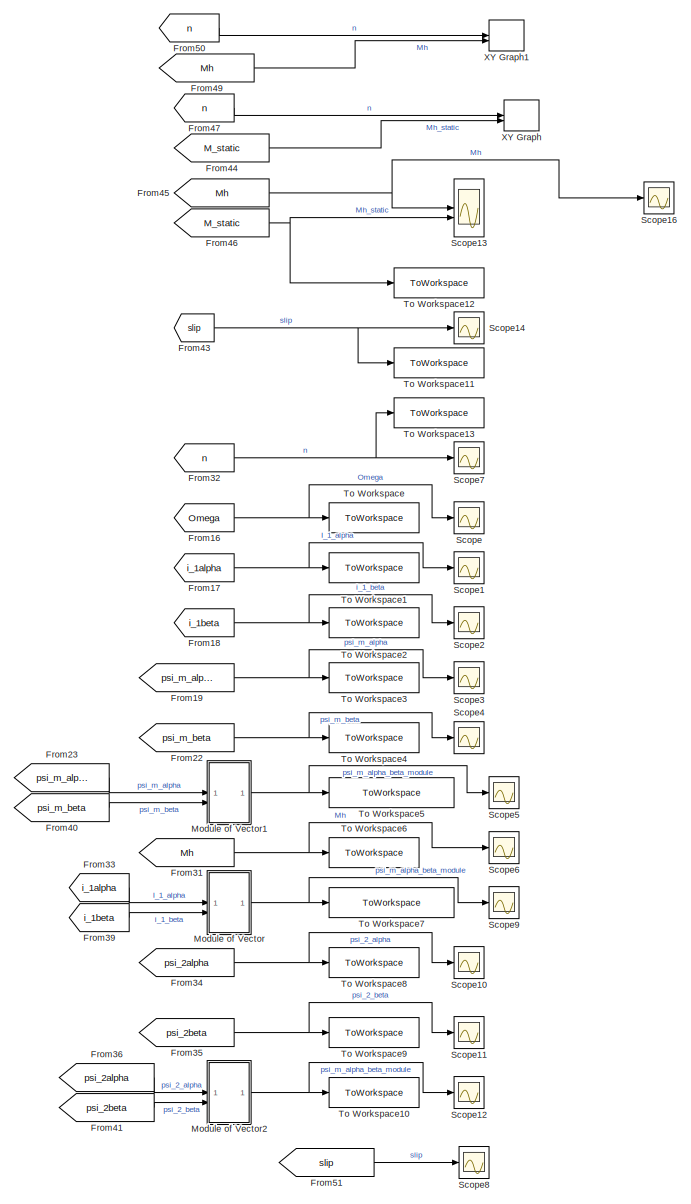
[diagram: root canvas - part 1/5, top right region]
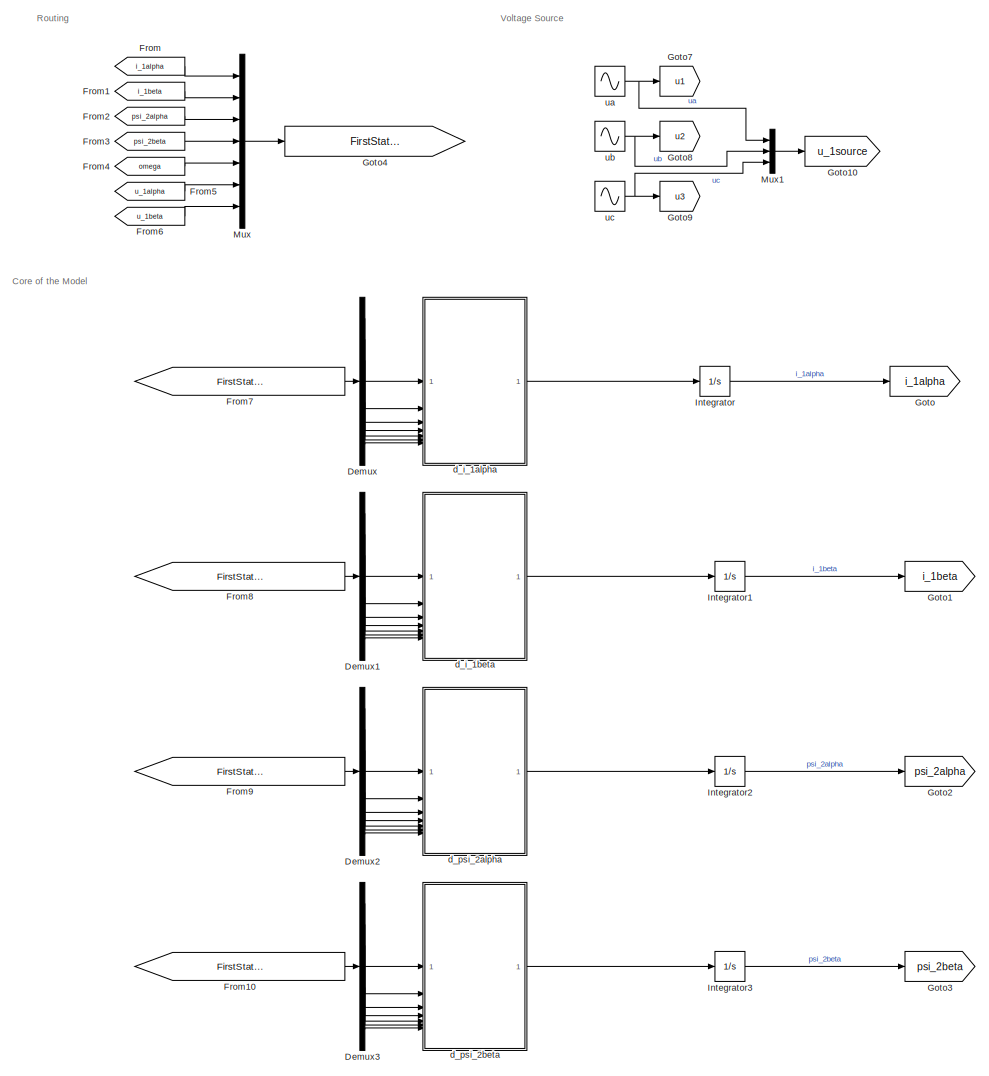
[diagram: root canvas - part 2/5, top left region]
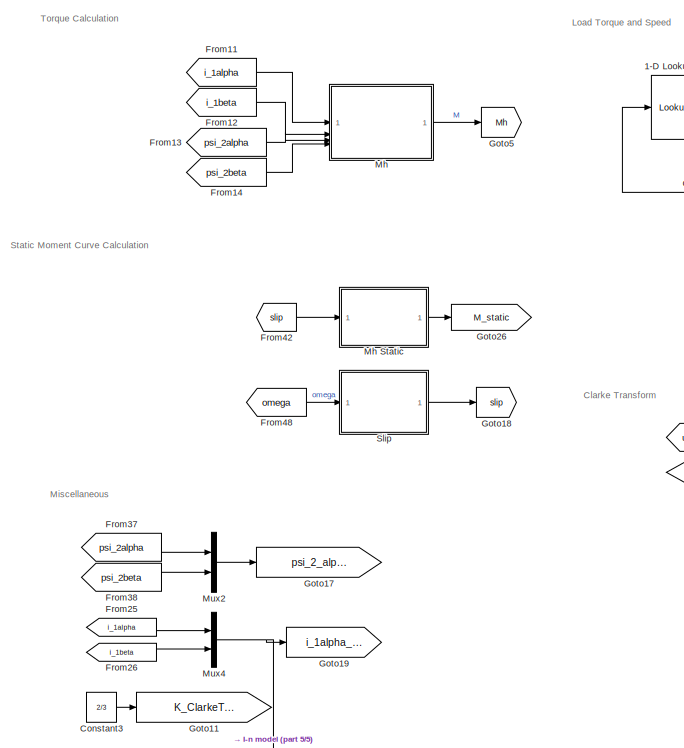
[diagram: root canvas - part 3/5, bottom left region]
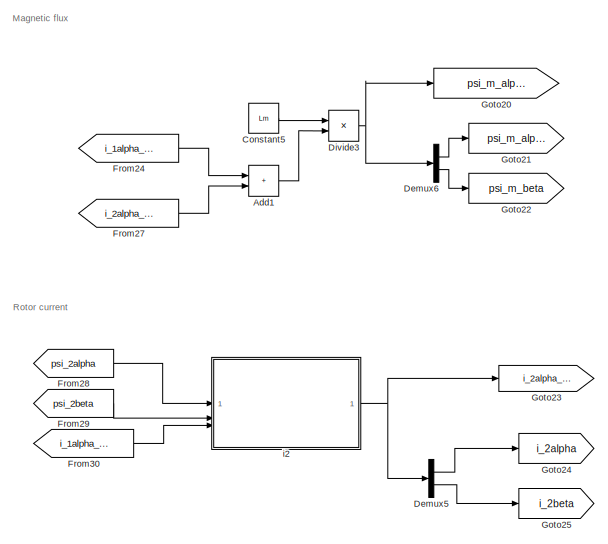
[diagram: root canvas - part 4/5, bottom center region]
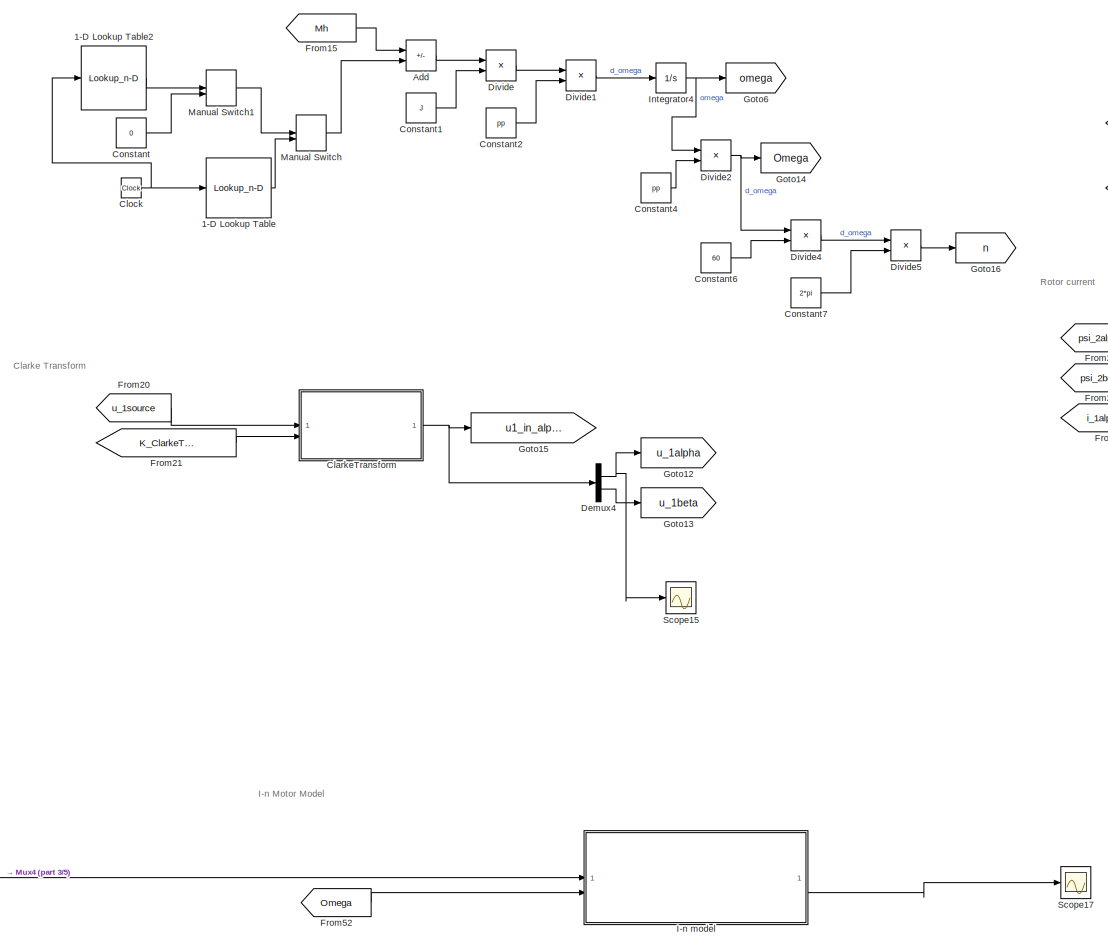
[diagram: root canvas - part 5/5, bottom center region]
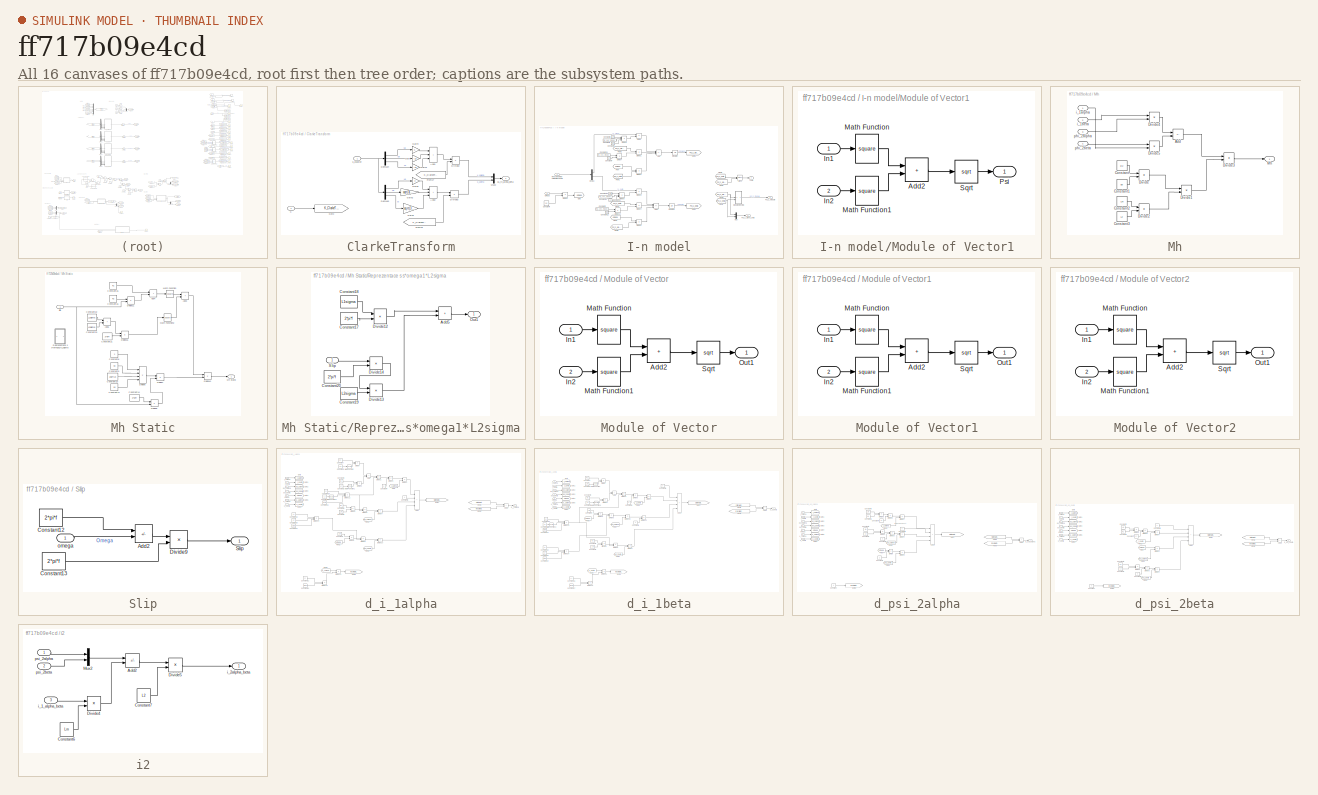
[diagram: thumbnail index - all 16 canvases of the model, root first then tree order]
MODEL slx_ff717b09e4cd
KIND model
CONFIG AbsTol = auto
CONFIG EnableMultiTasking = off
CONFIG FixedStep = 0.0001
CONFIG InitFcn = model_
CONFIG MaxStep = auto
CONFIG MinStep = auto
CONFIG RelTol = 1e-3
CONFIG SampleTimeConstraint = Unconstrained
CONFIG SolverName = ode4
CONFIG StartTime = 0.0
CONFIG StopTime = 1
BLOCK [Lookup_n-D] 1-D Lookup Table
  BreakpointsForDimension1 = [0;1.00001;1.001;10]
  InputPortMap = u0
  InternalRulePriority = Speed
  NumberOfTableDimensions = 1
  RndMeth = Simplest
  Table = [0;0;25;25]
BLOCK [Lookup_n-D] 1-D Lookup Table2
  BreakpointsForDimension1 = [1;2;10]
  InputPortMap = u0
  InternalRulePriority = Speed
  NumberOfTableDimensions = 1
  RndMeth = Simplest
  Table = [0;0;78.48]
BLOCK [Sum] Add
  IconShape = rectangular
  Inputs = +-
BLOCK [Sum] Add1
  IconShape = rectangular
BLOCK [SubSystem] ClarkeTransform
BLOCK [Sum] ClarkeTransform/Add1
  IconShape = rectangular
  Inputs = +++
BLOCK [Sum] ClarkeTransform/Add2
  IconShape = rectangular
  Inputs = +++
BLOCK [Demux] ClarkeTransform/Demux4
  Outputs = 3
BLOCK [Demux] ClarkeTransform/Demux5
  Outputs = 3
BLOCK [Product] ClarkeTransform/Divide2
  Inputs = **
BLOCK [Product] ClarkeTransform/Divide3
  Inputs = **
BLOCK [From] ClarkeTransform/From17
  GotoTag = K_ClarkeTransform
BLOCK [From] ClarkeTransform/From19
  GotoTag = K_ClarkeTransform
BLOCK [Gain] ClarkeTransform/Gain
  Gain = -1/2
BLOCK [Gain] ClarkeTransform/Gain1
  Gain = -1/2
BLOCK [Gain] ClarkeTransform/Gain2
  Gain = sqrt(3)/2
BLOCK [Gain] ClarkeTransform/Gain3
  Gain = -sqrt(3)/2
BLOCK [Gain] ClarkeTransform/Gain4
BLOCK [Gain] ClarkeTransform/Gain5
  Gain = 0
BLOCK [Goto] ClarkeTransform/Goto
  GotoTag = K_ClarkeTransform
BLOCK [Inport] ClarkeTransform/K
  Port = 2
BLOCK [Mux] ClarkeTransform/Mux2
  DisplayOption = bar
  Inputs = 2
BLOCK [Outport] ClarkeTransform/u1_in_alpha_beta
BLOCK [Inport] ClarkeTransform/u_1source
BLOCK [Clock] Clock
BLOCK [Constant] Constant
  Value = 0
BLOCK [Constant] Constant1
  Value = J
BLOCK [Constant] Constant2
  Value = pp
BLOCK [Constant] Constant3
  Value = 2/3
BLOCK [Constant] Constant4
  Value = pp
BLOCK [Constant] Constant5
  Value = Lm
BLOCK [Constant] Constant6
  Value = 60
BLOCK [Constant] Constant7
  Value = 2*pi
BLOCK [Demux] Demux
  Outputs = 7
BLOCK [Demux] Demux1
  Outputs = 7
BLOCK [Demux] Demux2
  Outputs = 7
BLOCK [Demux] Demux3
  Outputs = 7
BLOCK [Demux] Demux4
  Outputs = 2
BLOCK [Demux] Demux5
  Outputs = 2
BLOCK [Demux] Demux6
  Outputs = 2
BLOCK [Product] Divide
  Inputs = */
BLOCK [Product] Divide1
  Inputs = **
BLOCK [Product] Divide2
  Inputs = */
BLOCK [Product] Divide3
  Inputs = **
BLOCK [Product] Divide4
  Inputs = **
BLOCK [Product] Divide5
  Inputs = */
BLOCK [From] From
  GotoTag = i_1alpha
BLOCK [From] From1
  GotoTag = i_1beta
BLOCK [From] From10
  GotoTag = FirstStateEquationVariables
BLOCK [From] From11
  GotoTag = i_1alpha
BLOCK [From] From12
  GotoTag = i_1beta
BLOCK [From] From13
  GotoTag = psi_2alpha
BLOCK [From] From14
  GotoTag = psi_2beta
BLOCK [From] From15
  GotoTag = Mh
BLOCK [From] From16
  GotoTag = Omega
BLOCK [From] From17
  GotoTag = i_1alpha
BLOCK [From] From18
  GotoTag = i_1beta
BLOCK [From] From19
  GotoTag = psi_m_alpha
BLOCK [From] From2
  GotoTag = psi_2alpha
BLOCK [From] From20
  GotoTag = u_1source
BLOCK [From] From21
  GotoTag = K_ClarkeTransform
BLOCK [From] From22
  GotoTag = psi_m_beta
BLOCK [From] From23
  GotoTag = psi_m_alpha
BLOCK [From] From24
  GotoTag = i_1alpha_beta
BLOCK [From] From25
  GotoTag = i_1alpha
BLOCK [From] From26
  GotoTag = i_1beta
BLOCK [From] From27
  GotoTag = i_2alpha_beta
BLOCK [From] From28
  GotoTag = psi_2alpha
BLOCK [From] From29
  GotoTag = psi_2beta
BLOCK [From] From3
  GotoTag = psi_2beta
BLOCK [From] From30
  GotoTag = i_1alpha_beta
BLOCK [From] From31
  GotoTag = Mh
BLOCK [From] From32
  GotoTag = n
BLOCK [From] From33
  GotoTag = i_1alpha
BLOCK [From] From34
  GotoTag = psi_2alpha
BLOCK [From] From35
  GotoTag = psi_2beta
BLOCK [From] From36
  GotoTag = psi_2alpha
BLOCK [From] From37
  GotoTag = psi_2alpha
BLOCK [From] From38
  GotoTag = psi_2beta
BLOCK [From] From39
  GotoTag = i_1beta
BLOCK [From] From4
  GotoTag = omega
BLOCK [From] From40
  GotoTag = psi_m_beta
BLOCK [From] From41
  GotoTag = psi_2beta
BLOCK [From] From42
  GotoTag = slip
BLOCK [From] From43
  GotoTag = slip
BLOCK [From] From44
  GotoTag = M_static
BLOCK [From] From45
  GotoTag = Mh
BLOCK [From] From46
  GotoTag = M_static
BLOCK [From] From47
  GotoTag = n
BLOCK [From] From48
  GotoTag = omega
BLOCK [From] From49
  GotoTag = Mh
BLOCK [From] From5
  GotoTag = u_1alpha
BLOCK [From] From50
  GotoTag = n
BLOCK [From] From51
  GotoTag = slip
BLOCK [From] From52
  GotoTag = Omega
BLOCK [From] From6
  GotoTag = u_1beta
BLOCK [From] From7
  GotoTag = FirstStateEquationVariables
BLOCK [From] From8
  GotoTag = FirstStateEquationVariables
BLOCK [From] From9
  GotoTag = FirstStateEquationVariables
BLOCK [Goto] Goto
  GotoTag = i_1alpha
BLOCK [Goto] Goto1
  GotoTag = i_1beta
BLOCK [Goto] Goto10
  GotoTag = u_1source
BLOCK [Goto] Goto11
  GotoTag = K_ClarkeTransform
BLOCK [Goto] Goto12
  GotoTag = u_1alpha
BLOCK [Goto] Goto13
  GotoTag = u_1beta
BLOCK [Goto] Goto14
  GotoTag = Omega
BLOCK [Goto] Goto15
  GotoTag = u1_in_alpha_beta
BLOCK [Goto] Goto16
  GotoTag = n
BLOCK [Goto] Goto17
  GotoTag = psi_2_alpha_beta
BLOCK [Goto] Goto18
  GotoTag = slip
BLOCK [Goto] Goto19
  GotoTag = i_1alpha_beta
BLOCK [Goto] Goto2
  GotoTag = psi_2alpha
BLOCK [Goto] Goto20
  GotoTag = psi_m_alpha_beta
BLOCK [Goto] Goto21
  GotoTag = psi_m_alpha
BLOCK [Goto] Goto22
  GotoTag = psi_m_beta
BLOCK [Goto] Goto23
  GotoTag = i_2alpha_beta
BLOCK [Goto] Goto24
  GotoTag = i_2alpha
BLOCK [Goto] Goto25
  GotoTag = i_2beta
BLOCK [Goto] Goto26
  GotoTag = M_static
BLOCK [Goto] Goto3
  GotoTag = psi_2beta
BLOCK [Goto] Goto4
  GotoTag = FirstStateEquationVariables
BLOCK [Goto] Goto5
  GotoTag = Mh
BLOCK [Goto] Goto6
  GotoTag = omega
BLOCK [Goto] Goto7
  GotoTag = u1
BLOCK [Goto] Goto8
  GotoTag = u2
BLOCK [Goto] Goto9
  GotoTag = u3
BLOCK [SubSystem] I-n model
BLOCK [Sum] I-n model/Add
  IconShape = rectangular
  Inputs = +--
BLOCK [Sum] I-n model/Add1
  IconShape = rectangular
  Inputs = +-+
BLOCK [Trigonometry] I-n model/Atan2
  Operator = atan2
BLOCK [Constant] I-n model/Constant10
  Value = Lm
BLOCK [Constant] I-n model/Constant11
  Value = L2
BLOCK [Constant] I-n model/Constant12
  Value = L2
BLOCK [Constant] I-n model/Constant13
  Value = R2_vec_model
BLOCK [Constant] I-n model/Constant14
  Value = R2_vec_model
BLOCK [Constant] I-n model/Constant2
  Value = R2_vec_model
BLOCK [Constant] I-n model/Constant4
  Value = pp
BLOCK [Constant] I-n model/Constant5
  Value = R2_vec_model
BLOCK [Constant] I-n model/Constant7
  Value = L2
BLOCK [Constant] I-n model/Constant8
  Value = Lm
BLOCK [Constant] I-n model/Constant9
  Value = L2
BLOCK [Demux] I-n model/Demux
  Outputs = 2
BLOCK [Product] I-n model/Divide
  Inputs = **
BLOCK [Product] I-n model/Divide1
  Inputs = **
BLOCK [Product] I-n model/Divide10
  Inputs = */
BLOCK [Product] I-n model/Divide2
  Inputs = **
BLOCK [Product] I-n model/Divide3
  Inputs = **
BLOCK [Product] I-n model/Divide4
  Inputs = **
BLOCK [Product] I-n model/Divide5
  Inputs = **
BLOCK [Product] I-n model/Divide6
  Inputs = **
BLOCK [Product] I-n model/Divide7
  Inputs = */
BLOCK [Product] I-n model/Divide8
  Inputs = **/
BLOCK [Product] I-n model/Divide9
  Inputs = **/
BLOCK [From] I-n model/From
  GotoTag = omega
BLOCK [From] I-n model/From1
  GotoTag = Psi_2_beta
BLOCK [From] I-n model/From2
  GotoTag = Psi_2_alpha
BLOCK [From] I-n model/From3
  GotoTag = Psi_2_beta
BLOCK [From] I-n model/From4
  GotoTag = omega
BLOCK [From] I-n model/From5
  GotoTag = Psi_2_alpha
BLOCK [From] I-n model/From6
  GotoTag = Psi_2_beta
BLOCK [From] I-n model/From7
  GotoTag = Psi_2_alpha
BLOCK [From] I-n model/From8
  GotoTag = Psi_2_alpha
BLOCK [From] I-n model/From9
  GotoTag = Psi_2_beta
BLOCK [Goto] I-n model/Goto
  GotoTag = omega
BLOCK [Goto] I-n model/Goto1
  GotoTag = Psi_2_alpha
BLOCK [Goto] I-n model/Goto2
  GotoTag = Psi_2_beta
BLOCK [Integrator] I-n model/Integrator
BLOCK [Integrator] I-n model/Integrator1
BLOCK [Inport] I-n model/Measured Motor Current alpha beta
BLOCK [SubSystem] I-n model/Module of Vector1
BLOCK [Sum] I-n model/Module of Vector1/Add2
  IconShape = rectangular
BLOCK [Inport] I-n model/Module of Vector1/In1
BLOCK [Inport] I-n model/Module of Vector1/In2
  Port = 2
BLOCK [Math] I-n model/Module of Vector1/Math Function
  Operator = square
BLOCK [Math] I-n model/Module of Vector1/Math Function1
  Operator = square
BLOCK [Outport] I-n model/Module of Vector1/Psi
BLOCK [Sqrt] I-n model/Module of Vector1/Sqrt
BLOCK [Mux] I-n model/Mux
  DisplayOption = bar
  Inputs = 2
BLOCK [Inport] I-n model/Omega
  Port = 2
BLOCK [Outport] I-n model/Psi_2_alpha_beta
  Port = 3
BLOCK [Outport] I-n model/Psi_2_module
  Port = 2
BLOCK [Outport] I-n model/Theta
BLOCK [Integrator] Integrator
BLOCK [Integrator] Integrator1
BLOCK [Integrator] Integrator2
BLOCK [Integrator] Integrator3
BLOCK [Integrator] Integrator4
BLOCK [ManualSwitch] Manual Switch
BLOCK [ManualSwitch] Manual Switch1
  CurrentSetting = 0
BLOCK [SubSystem] Mh
BLOCK [SubSystem] Mh Static
BLOCK [Sum] Mh Static/Add3
  IconShape = rectangular
BLOCK [Sum] Mh Static/Add4
  IconShape = rectangular
BLOCK [Sum] Mh Static/Add6
  IconShape = rectangular
BLOCK [Constant] Mh Static/Constant10
  Value = 230^(2)
BLOCK [Constant] Mh Static/Constant11
  Value = pp
BLOCK [Constant] Mh Static/Constant14
  Value = 2*pi*f
BLOCK [Constant] Mh Static/Constant15
  Value = R1
BLOCK [Constant] Mh Static/Constant16
  Value = R2
BLOCK [Constant] Mh Static/Constant21
  Value = 2*pi*f
BLOCK [Constant] Mh Static/Constant22
  Value = L1sigma
BLOCK [Constant] Mh Static/Constant23
  Value = L2sigma
BLOCK [Constant] Mh Static/Constant8
  Value = 3
BLOCK [Constant] Mh Static/Constant9
  Value = R2
BLOCK [Product] Mh Static/Divide10
  Inputs = /*
BLOCK [Product] Mh Static/Divide11
  Inputs = */
BLOCK [Product] Mh Static/Divide15
  Inputs = **
BLOCK [Product] Mh Static/Divide6
  Inputs = ****
BLOCK [Product] Mh Static/Divide7
  Inputs = */
BLOCK [Product] Mh Static/Divide8
  Inputs = **
BLOCK [Math] Mh Static/Math Function
  Operator = square
BLOCK [Math] Mh Static/Math Function2
  Operator = square
BLOCK [Outport] Mh Static/Mh Static
BLOCK [SubSystem] Mh Static/Reprezentace s s*omega1*L2sigma
BLOCK [Sum] Mh Static/Reprezentace s s*omega1*L2sigma/Add5
  IconShape = rectangular
BLOCK [Constant] Mh Static/Reprezentace s s*omega1*L2sigma/Constant17
  Value = 2*pi*f
BLOCK [Constant] Mh Static/Reprezentace s s*omega1*L2sigma/Constant18
  Value = L1sigma
BLOCK [Constant] Mh Static/Reprezentace s s*omega1*L2sigma/Constant19
  Value = L2sigma
BLOCK [Constant] Mh Static/Reprezentace s s*omega1*L2sigma/Constant20
  Value = 2*pi*f
BLOCK [Product] Mh Static/Reprezentace s s*omega1*L2sigma/Divide12
  Inputs = **
BLOCK [Product] Mh Static/Reprezentace s s*omega1*L2sigma/Divide13
  Inputs = **
BLOCK [Product] Mh Static/Reprezentace s s*omega1*L2sigma/Divide14
  Inputs = **
BLOCK [Outport] Mh Static/Reprezentace s s*omega1*L2sigma/Out1
BLOCK [Inport] Mh Static/Reprezentace s s*omega1*L2sigma/Slip
BLOCK [Inport] Mh Static/Slip
BLOCK [Sum] Mh/Add
  IconShape = rectangular
  Inputs = +-
BLOCK [Constant] Mh/Constant
  Value = 3/2
BLOCK [Constant] Mh/Constant1
  Value = pp
BLOCK [Constant] Mh/Constant2
  Value = Lm
BLOCK [Constant] Mh/Constant3
  Value = L2
BLOCK [Product] Mh/Divide
  Inputs = **
BLOCK [Product] Mh/Divide1
  Inputs = **
BLOCK [Product] Mh/Divide2
  Inputs = */
BLOCK [Product] Mh/Divide3
  Inputs = **
BLOCK [Product] Mh/Divide4
  Inputs = **
BLOCK [Product] Mh/Divide5
  Inputs = **
BLOCK [Outport] Mh/Mh
BLOCK [Inport] Mh/i_1alpha
BLOCK [Inport] Mh/i_1beta
  Port = 2
BLOCK [Inport] Mh/phi_2alpha
  Port = 3
BLOCK [Inport] Mh/phi_2beta
  Port = 4
BLOCK [SubSystem] Module of Vector
BLOCK [Sum] Module of Vector/Add2
  IconShape = rectangular
BLOCK [Inport] Module of Vector/In1
BLOCK [Inport] Module of Vector/In2
  Port = 2
BLOCK [Math] Module of Vector/Math Function
  Operator = square
BLOCK [Math] Module of Vector/Math Function1
  Operator = square
BLOCK [Outport] Module of Vector/Out1
BLOCK [Sqrt] Module of Vector/Sqrt
BLOCK [SubSystem] Module of Vector1
BLOCK [Sum] Module of Vector1/Add2
  IconShape = rectangular
BLOCK [Inport] Module of Vector1/In1
BLOCK [Inport] Module of Vector1/In2
  Port = 2
BLOCK [Math] Module of Vector1/Math Function
  Operator = square
BLOCK [Math] Module of Vector1/Math Function1
  Operator = square
BLOCK [Outport] Module of Vector1/Out1
BLOCK [Sqrt] Module of Vector1/Sqrt
BLOCK [SubSystem] Module of Vector2
BLOCK [Sum] Module of Vector2/Add2
  IconShape = rectangular
BLOCK [Inport] Module of Vector2/In1
BLOCK [Inport] Module of Vector2/In2
  Port = 2
BLOCK [Math] Module of Vector2/Math Function
  Operator = square
BLOCK [Math] Module of Vector2/Math Function1
  Operator = square
BLOCK [Outport] Module of Vector2/Out1
BLOCK [Sqrt] Module of Vector2/Sqrt
BLOCK [Mux] Mux
  DisplayOption = bar
  Inputs = 7
BLOCK [Mux] Mux1
  DisplayOption = bar
  Inputs = 3
BLOCK [Mux] Mux2
  DisplayOption = bar
  Inputs = 2
BLOCK [Mux] Mux4
  DisplayOption = bar
  Inputs = 2
BLOCK [Scope] Scope
  Floating = off
  NumInputPorts = 1
  ScopeSpecificationString = Simulink.scopes.TimeScopeBlockCfg('CurrentConfiguration', extmgr.ConfigurationSet(extmgr.Configuration('Core','General UI',true),extmgr.Configuration('Core','Source UI',true),extmgr.Configuration('Sources','WiredSimulink',true),extmgr.Configuration('Visuals','Time Domain',true,'SerializedDisplays',{struct('MinYLimReal','-179.1557','MaxYLimReal','19.90619','YLabelReal','','MinYLimMag',' 0.00000','M...<+1720ch>
BLOCK [Scope] Scope1
  Floating = off
  NumInputPorts = 1
  ScopeSpecificationString = Simulink.scopes.TimeScopeBlockCfg('CurrentConfiguration', extmgr.ConfigurationSet(extmgr.Configuration('Core','General UI',true),extmgr.Configuration('Core','Source UI',true),extmgr.Configuration('Sources','WiredSimulink',true,'DataLoggingVariableName','ScopeData1'),extmgr.Configuration('Visuals','Time Domain',true,'SerializedDisplays',{struct('MinYLimReal','-290.57657','MaxYLimReal','341.82093','...<+1784ch>
BLOCK [Scope] Scope10
  Floating = off
  NumInputPorts = 1
  ScopeSpecificationString = Simulink.scopes.TimeScopeBlockCfg('CurrentConfiguration', extmgr.ConfigurationSet(extmgr.Configuration('Core','General UI',true),extmgr.Configuration('Core','Source UI',true),extmgr.Configuration('Sources','WiredSimulink',true,'DataLoggingVariableName','ScopeData2'),extmgr.Configuration('Visuals','Time Domain',true,'SerializedDisplays',{struct('MinYLimReal','-1.26191','MaxYLimReal','1.26156','YLab...<+1370ch>
BLOCK [Scope] Scope11
  Floating = off
  NumInputPorts = 1
  ScopeSpecificationString = Simulink.scopes.TimeScopeBlockCfg('CurrentConfiguration', extmgr.ConfigurationSet(extmgr.Configuration('Core','General UI',true),extmgr.Configuration('Core','Source UI',true),extmgr.Configuration('Sources','WiredSimulink',true,'DataLoggingVariableName','ScopeData3'),extmgr.Configuration('Visuals','Time Domain',true,'SerializedDisplays',{struct('MinYLimReal','-1.26139','MaxYLimReal','1.26202','YLab...<+1369ch>
BLOCK [Scope] Scope12
  Floating = off
  NumInputPorts = 1
  ScopeSpecificationString = Simulink.scopes.TimeScopeBlockCfg('CurrentConfiguration', extmgr.ConfigurationSet(extmgr.Configuration('Core','General UI',true),extmgr.Configuration('Core','Source UI',true),extmgr.Configuration('Sources','WiredSimulink',true,'DataLoggingVariableName','ScopeData4'),extmgr.Configuration('Visuals','Time Domain',true,'SerializedDisplays',{struct('MinYLimReal','-0.12621','MaxYLimReal','1.13591','YLab...<+1431ch>
BLOCK [Scope] Scope13
  Floating = off
  NumInputPorts = 2
  ScopeSpecificationString = Simulink.scopes.TimeScopeBlockCfg('CurrentConfiguration', extmgr.ConfigurationSet(extmgr.Configuration('Core','General UI',true),extmgr.Configuration('Core','Source UI',true),extmgr.Configuration('Sources','WiredSimulink',true,'DataLoggingVariableName','ScopeData5'),extmgr.Configuration('Visuals','Time Domain',true,'SerializedDisplays',{struct('MinYLimReal','-152.49004','MaxYLimReal','350.07124','...<+2094ch>
BLOCK [Scope] Scope14
  Floating = off
  NumInputPorts = 1
  ScopeSpecificationString = Simulink.scopes.TimeScopeBlockCfg('CurrentConfiguration', extmgr.ConfigurationSet(extmgr.Configuration('Core','General UI',true),extmgr.Configuration('Core','Source UI',true),extmgr.Configuration('Sources','WiredSimulink',true,'DataLoggingVariableName','ScopeData6'),extmgr.Configuration('Visuals','Time Domain',true),extmgr.Configuration('Tools','Plot Navigation',true),extmgr.Configuration('Tools',...<+40ch>
BLOCK [Scope] Scope15
  Floating = off
  NumInputPorts = 1
  ScopeSpecificationString = Simulink.scopes.TimeScopeBlockCfg('CurrentConfiguration', extmgr.ConfigurationSet(extmgr.Configuration('Core','General UI',true),extmgr.Configuration('Core','Source UI',true),extmgr.Configuration('Sources','WiredSimulink',true,'DataLoggingVariableName','ScopeData1'),extmgr.Configuration('Visuals','Time Domain',true,'SerializedDisplays',{struct('MinYLimReal','-406.5864','MaxYLimReal','406.5864','YL...<+1448ch>
BLOCK [Scope] Scope16
  Floating = off
  NumInputPorts = 1
  ScopeSpecificationString = Simulink.scopes.TimeScopeBlockCfg('CurrentConfiguration', extmgr.ConfigurationSet(extmgr.Configuration('Core','General UI',true),extmgr.Configuration('Core','Source UI',true),extmgr.Configuration('Sources','WiredSimulink',true,'DataLoggingVariableName','ScopeData1'),extmgr.Configuration('Visuals','Time Domain',true,'SerializedDisplays',{struct('MinYLimReal','-371.80186','MaxYLimReal','184.48697','...<+1474ch>
BLOCK [Scope] Scope17
  Floating = off
  NumInputPorts = 1
  ScopeSpecificationString = Simulink.scopes.TimeScopeBlockCfg('CurrentConfiguration', extmgr.ConfigurationSet(extmgr.Configuration('Core','General UI',true),extmgr.Configuration('Core','Source UI',true),extmgr.Configuration('Sources','WiredSimulink',true,'DataLoggingVariableName','ScopeData1'),extmgr.Configuration('Visuals','Time Domain',true,'SerializedDisplays',{struct('MinYLimReal','-0.12621','MaxYLimReal','1.13591','YLab...<+1413ch>
BLOCK [Scope] Scope2
  Floating = off
  NumInputPorts = 1
  ScopeSpecificationString = Simulink.scopes.TimeScopeBlockCfg('CurrentConfiguration', extmgr.ConfigurationSet(extmgr.Configuration('Core','General UI',true),extmgr.Configuration('Core','Source UI',true),extmgr.Configuration('Sources','WiredSimulink',true,'DataLoggingVariableName','ScopeData2'),extmgr.Configuration('Visuals','Time Domain',true,'SerializedDisplays',{struct('MinYLimReal','-109.46548','MaxYLimReal','113.10964','...<+1381ch>
BLOCK [Scope] Scope3
  Floating = off
  NumInputPorts = 1
  ScopeSpecificationString = Simulink.scopes.TimeScopeBlockCfg('CurrentConfiguration', extmgr.ConfigurationSet(extmgr.Configuration('Core','General UI',true),extmgr.Configuration('Core','Source UI',true),extmgr.Configuration('Sources','WiredSimulink',true,'DataLoggingVariableName','ScopeData3'),extmgr.Configuration('Visuals','Time Domain',true,'SerializedDisplays',{struct('MinYLimReal','-1.26429','MaxYLimReal','1.26371','YLab...<+1370ch>
BLOCK [Scope] Scope4
  Floating = off
  NumInputPorts = 1
  ScopeSpecificationString = Simulink.scopes.TimeScopeBlockCfg('CurrentConfiguration', extmgr.ConfigurationSet(extmgr.Configuration('Core','General UI',true),extmgr.Configuration('Core','Source UI',true),extmgr.Configuration('Sources','WiredSimulink',true,'DataLoggingVariableName','ScopeData4'),extmgr.Configuration('Visuals','Time Domain',true),extmgr.Configuration('Tools','Plot Navigation',true),extmgr.Configuration('Tools',...<+40ch>
BLOCK [Scope] Scope5
  Floating = off
  NumInputPorts = 1
  ScopeSpecificationString = Simulink.scopes.TimeScopeBlockCfg('CurrentConfiguration', extmgr.ConfigurationSet(extmgr.Configuration('Core','General UI',true),extmgr.Configuration('Core','Source UI',true),extmgr.Configuration('Sources','WiredSimulink',true,'DataLoggingVariableName','ScopeData5'),extmgr.Configuration('Visuals','Time Domain',true,'SerializedDisplays',{struct('MinYLimReal','-0.0851','MaxYLimReal','0.76589','YLabe...<+1410ch>
BLOCK [Scope] Scope6
  Floating = off
  NumInputPorts = 1
  ScopeSpecificationString = Simulink.scopes.TimeScopeBlockCfg('CurrentConfiguration', extmgr.ConfigurationSet(extmgr.Configuration('Core','General UI',true),extmgr.Configuration('Core','Source UI',true),extmgr.Configuration('Sources','WiredSimulink',true,'DataLoggingVariableName','ScopeData6'),extmgr.Configuration('Visuals','Time Domain',true,'SerializedDisplays',{struct('MinYLimReal','-184.48728','MaxYLimReal','371.80469','...<+1424ch>
BLOCK [Scope] Scope7
  Floating = off
  NumInputPorts = 1
  ScopeSpecificationString = Simulink.scopes.TimeScopeBlockCfg('CurrentConfiguration', extmgr.ConfigurationSet(extmgr.Configuration('Core','General UI',true),extmgr.Configuration('Core','Source UI',true),extmgr.Configuration('Sources','WiredSimulink',true,'DataLoggingVariableName','ScopeData1'),extmgr.Configuration('Visuals','Time Domain',true,'SerializedDisplays',{struct('MinYLimReal','-189.74271','MaxYLimReal','1707.68438',...<+1452ch>
BLOCK [Scope] Scope8
  Floating = off
  NumInputPorts = 1
  ScopeSpecificationString = Simulink.scopes.TimeScopeBlockCfg('CurrentConfiguration', extmgr.ConfigurationSet(extmgr.Configuration('Core','General UI',true),extmgr.Configuration('Core','Source UI',true),extmgr.Configuration('Sources','WiredSimulink',true,'DataLoggingVariableName','ScopeData1'),extmgr.Configuration('Visuals','Time Domain',true,'SerializedDisplays',{struct('MinYLimReal','-0.14054','MaxYLimReal','1.12673','YLab...<+1436ch>
BLOCK [Scope] Scope9
  Floating = off
  NumInputPorts = 1
  ScopeSpecificationString = Simulink.scopes.TimeScopeBlockCfg('CurrentConfiguration', extmgr.ConfigurationSet(extmgr.Configuration('Core','General UI',true),extmgr.Configuration('Core','Source UI',true),extmgr.Configuration('Sources','WiredSimulink',true,'DataLoggingVariableName','ScopeData1'),extmgr.Configuration('Visuals','Time Domain',true,'SerializedDisplays',{struct('MinYLimReal','-14.5556','MaxYLimReal','291.24811','YL...<+1464ch>
BLOCK [SubSystem] Slip
BLOCK [Sum] Slip/Add2
  IconShape = rectangular
  Inputs = +-
BLOCK [Constant] Slip/Constant12
  Value = 2*pi*f
BLOCK [Constant] Slip/Constant13
  Value = 2*pi*f
BLOCK [Product] Slip/Divide9
  Inputs = */
BLOCK [Outport] Slip/Slip
BLOCK [Inport] Slip/omega
BLOCK [ToWorkspace] To Workspace
  FixptAsFi = on
  MaxDataPoints = inf
  SampleTime = -1
  SaveFormat = Timeseries
  VariableName = Omega
BLOCK [ToWorkspace] To Workspace1
  FixptAsFi = on
  MaxDataPoints = inf
  SampleTime = -1
  SaveFormat = Timeseries
  VariableName = i_1alpha
BLOCK [ToWorkspace] To Workspace10
  FixptAsFi = on
  MaxDataPoints = inf
  SampleTime = -1
  SaveFormat = Timeseries
  VariableName = psi_2_alpha_beta_module
BLOCK [ToWorkspace] To Workspace11
  FixptAsFi = on
  MaxDataPoints = inf
  SampleTime = -1
  SaveFormat = Timeseries
  VariableName = slip
BLOCK [ToWorkspace] To Workspace12
  FixptAsFi = on
  MaxDataPoints = inf
  SampleTime = -1
  SaveFormat = Timeseries
  VariableName = mh_static
BLOCK [ToWorkspace] To Workspace13
  FixptAsFi = on
  MaxDataPoints = inf
  SampleTime = -1
  SaveFormat = Timeseries
  VariableName = n
BLOCK [ToWorkspace] To Workspace2
  FixptAsFi = on
  MaxDataPoints = inf
  SampleTime = -1
  SaveFormat = Timeseries
  VariableName = i_1beta
BLOCK [ToWorkspace] To Workspace3
  FixptAsFi = on
  MaxDataPoints = inf
  SampleTime = -1
  SaveFormat = Timeseries
  VariableName = psi_m_alpha
BLOCK [ToWorkspace] To Workspace4
  FixptAsFi = on
  MaxDataPoints = inf
  SampleTime = -1
  SaveFormat = Timeseries
  VariableName = psi_m_beta
BLOCK [ToWorkspace] To Workspace5
  FixptAsFi = on
  MaxDataPoints = inf
  SampleTime = -1
  SaveFormat = Timeseries
  VariableName = psi_m_alpha_beta_module
BLOCK [ToWorkspace] To Workspace6
  FixptAsFi = on
  MaxDataPoints = inf
  SampleTime = -1
  SaveFormat = Timeseries
  VariableName = Mh
BLOCK [ToWorkspace] To Workspace7
  FixptAsFi = on
  MaxDataPoints = inf
  SampleTime = -1
  SaveFormat = Timeseries
  VariableName = i_1_alpha_beta_module
BLOCK [ToWorkspace] To Workspace8
  FixptAsFi = on
  MaxDataPoints = inf
  SampleTime = -1
  SaveFormat = Timeseries
  VariableName = psi_2_alpha
BLOCK [ToWorkspace] To Workspace9
  FixptAsFi = on
  MaxDataPoints = inf
  SampleTime = -1
  SaveFormat = Timeseries
  VariableName = psi_2_beta
BLOCK [Record] XY Graph
  CompatibilityTag = XY
  FileSettingsInternal = {"entries":[{"content":{"excelSettings":{"content":{},"type":"Streamout.ExcelSettings"}},"type":"Streamout.FileSettingStorage","uuid":"073164f0-6d6e-4a0e-82e9-ad09a6630206"}],"packageUris":["http://schema.mathworks.com/mf0/streamout_blocks/R2020a"],"version":"1.0"}
  Layout = [1 1]
  SignalsInternal = {"entries":[{"content":{"signals":[{"content":{"blockPath":["model/XY Graph"],"channel":[],"dimensions":[1],"domain":"model/XY Graph","lineColor":"#a2142f","plots":[1],"port":1,"sid":[""],"signalID":618,"signalName":"n"},"type":"RecordBlkView.Signal","uuid":"144f1e6a-0c61-40f7-a1fb-ced2fde9ddc4"},{"content":{"blockPath":["model/XY Graph"],"channel":[],"dimensions":[1],"domain":"model/XY Graph","li...<+345ch>
  VisualizationBindings = {"xyplotplugin":{"info":[{"series":[{"bindingParametersList":[{"parameter":"X-Axis","signalID":618,"signalName":"n"},{"parameter":"Y-Axis","signalID":622,"signalName":"Mh_static"}],"seriesID":12524}],"subplotID":1}]}}
BLOCK [Record] XY Graph1
  CompatibilityTag = XY
  FileSettingsInternal = {"entries":[{"content":{"excelSettings":{"content":{},"type":"Streamout.ExcelSettings"}},"type":"Streamout.FileSettingStorage","uuid":"b955155e-40ef-4112-b93a-82acc3085115"}],"packageUris":["http://schema.mathworks.com/mf0/streamout_blocks/R2020a"],"version":"1.0"}
  Layout = [1 1]
  SignalsInternal = {"entries":[{"content":{"signals":[{"content":{"blockPath":["model/XY Graph1"],"channel":[],"dimensions":[1],"domain":"model/XY Graph1","lineColor":"#a2142f","plots":[1],"port":1,"sid":[""],"signalID":626,"signalName":"n"},"type":"RecordBlkView.Signal","uuid":"0b80e692-503e-4943-b053-a6a9fc97d3ff"},{"content":{"blockPath":["model/XY Graph1"],"channel":[],"dimensions":[1],"domain":"model/XY Graph1"...<+342ch>
  VisualizationBindings = {"xyplotplugin":{"info":[{"series":[{"bindingParametersList":[{"parameter":"X-Axis","signalID":626,"signalName":"n"},{"parameter":"Y-Axis","signalID":630,"signalName":"Mh"}],"seriesID":48350}],"subplotID":1}]}}
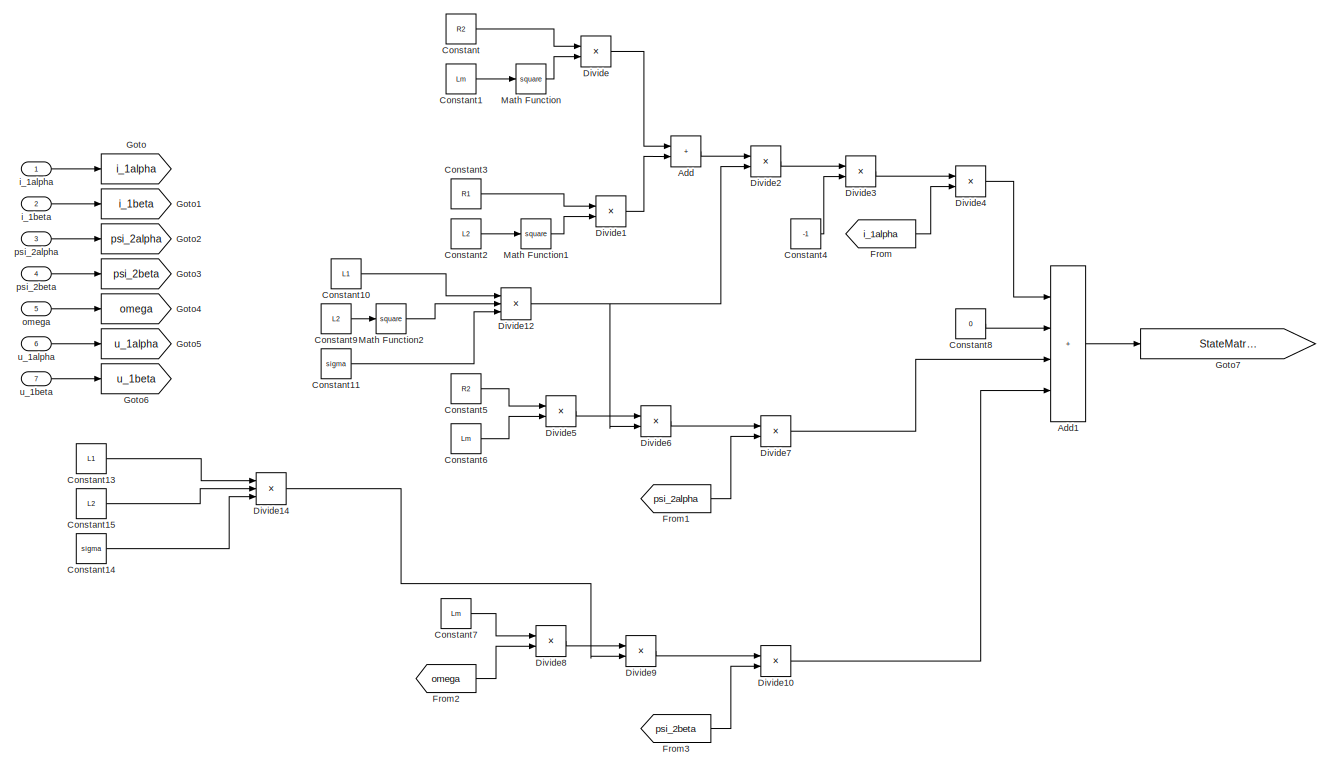
[diagram: d_i_1alpha - part 1/3, central region]
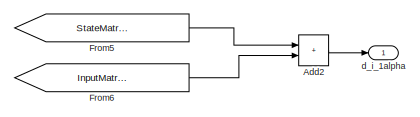
[diagram: d_i_1alpha - part 2/3, middle right region]
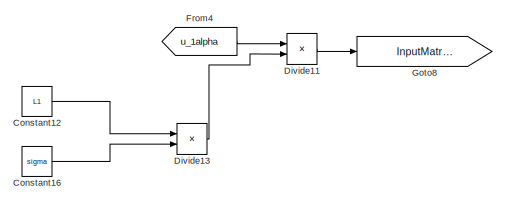
[diagram: d_i_1alpha - part 3/3, bottom left region]
BLOCK [SubSystem] d_i_1alpha
BLOCK [Sum] d_i_1alpha/Add
  IconShape = rectangular
BLOCK [Sum] d_i_1alpha/Add1
  IconShape = rectangular
  Inputs = ++++
BLOCK [Sum] d_i_1alpha/Add2
  IconShape = rectangular
BLOCK [Constant] d_i_1alpha/Constant
  Value = R2
BLOCK [Constant] d_i_1alpha/Constant1
  Value = Lm
BLOCK [Constant] d_i_1alpha/Constant10
  Value = L1
BLOCK [Constant] d_i_1alpha/Constant11
  Value = sigma
BLOCK [Constant] d_i_1alpha/Constant12
  Value = L1
BLOCK [Constant] d_i_1alpha/Constant13
  Value = L1
BLOCK [Constant] d_i_1alpha/Constant14
  Value = sigma
BLOCK [Constant] d_i_1alpha/Constant15
  Value = L2
BLOCK [Constant] d_i_1alpha/Constant16
  Value = sigma
BLOCK [Constant] d_i_1alpha/Constant2
  Value = L2
BLOCK [Constant] d_i_1alpha/Constant3
  Value = R1
BLOCK [Constant] d_i_1alpha/Constant4
  Value = -1
BLOCK [Constant] d_i_1alpha/Constant5
  Value = R2
BLOCK [Constant] d_i_1alpha/Constant6
  Value = Lm
BLOCK [Constant] d_i_1alpha/Constant7
  Value = Lm
BLOCK [Constant] d_i_1alpha/Constant8
  Value = 0
BLOCK [Constant] d_i_1alpha/Constant9
  Value = L2
BLOCK [Product] d_i_1alpha/Divide
  Inputs = **
BLOCK [Product] d_i_1alpha/Divide1
  Inputs = **
BLOCK [Product] d_i_1alpha/Divide10
  Inputs = **
BLOCK [Product] d_i_1alpha/Divide11
  Inputs = */
BLOCK [Product] d_i_1alpha/Divide12
  Inputs = ***
BLOCK [Product] d_i_1alpha/Divide13
  Inputs = **
BLOCK [Product] d_i_1alpha/Divide14
  Inputs = ***
BLOCK [Product] d_i_1alpha/Divide2
  Inputs = */
BLOCK [Product] d_i_1alpha/Divide3
  Inputs = **
BLOCK [Product] d_i_1alpha/Divide4
  Inputs = **
BLOCK [Product] d_i_1alpha/Divide5
  Inputs = **
BLOCK [Product] d_i_1alpha/Divide6
  Inputs = */
BLOCK [Product] d_i_1alpha/Divide7
  Inputs = **
BLOCK [Product] d_i_1alpha/Divide8
  Inputs = **
BLOCK [Product] d_i_1alpha/Divide9
  Inputs = */
BLOCK [From] d_i_1alpha/From
  GotoTag = i_1alpha
BLOCK [From] d_i_1alpha/From1
  GotoTag = psi_2alpha
BLOCK [From] d_i_1alpha/From2
  GotoTag = omega
BLOCK [From] d_i_1alpha/From3
  GotoTag = psi_2beta
BLOCK [From] d_i_1alpha/From4
  GotoTag = u_1alpha
BLOCK [From] d_i_1alpha/From5
  GotoTag = StateMatrix_x_StateVector
BLOCK [From] d_i_1alpha/From6
  GotoTag = InputMatrix_x_Input
BLOCK [Goto] d_i_1alpha/Goto
  GotoTag = i_1alpha
BLOCK [Goto] d_i_1alpha/Goto1
  GotoTag = i_1beta
BLOCK [Goto] d_i_1alpha/Goto2
  GotoTag = psi_2alpha
BLOCK [Goto] d_i_1alpha/Goto3
  GotoTag = psi_2beta
BLOCK [Goto] d_i_1alpha/Goto4
  GotoTag = omega
BLOCK [Goto] d_i_1alpha/Goto5
  GotoTag = u_1alpha
BLOCK [Goto] d_i_1alpha/Goto6
  GotoTag = u_1beta
BLOCK [Goto] d_i_1alpha/Goto7
  GotoTag = StateMatrix_x_StateVector
BLOCK [Goto] d_i_1alpha/Goto8
  GotoTag = InputMatrix_x_Input
BLOCK [Math] d_i_1alpha/Math Function
  Operator = square
BLOCK [Math] d_i_1alpha/Math Function1
  Operator = square
BLOCK [Math] d_i_1alpha/Math Function2
  Operator = square
BLOCK [Outport] d_i_1alpha/d_i_1alpha
BLOCK [Inport] d_i_1alpha/i_1alpha
BLOCK [Inport] d_i_1alpha/i_1beta
  Port = 2
BLOCK [Inport] d_i_1alpha/omega
  Port = 5
BLOCK [Inport] d_i_1alpha/psi_2alpha
  Port = 3
BLOCK [Inport] d_i_1alpha/psi_2beta
  Port = 4
BLOCK [Inport] d_i_1alpha/u_1alpha
  Port = 6
BLOCK [Inport] d_i_1alpha/u_1beta
  Port = 7
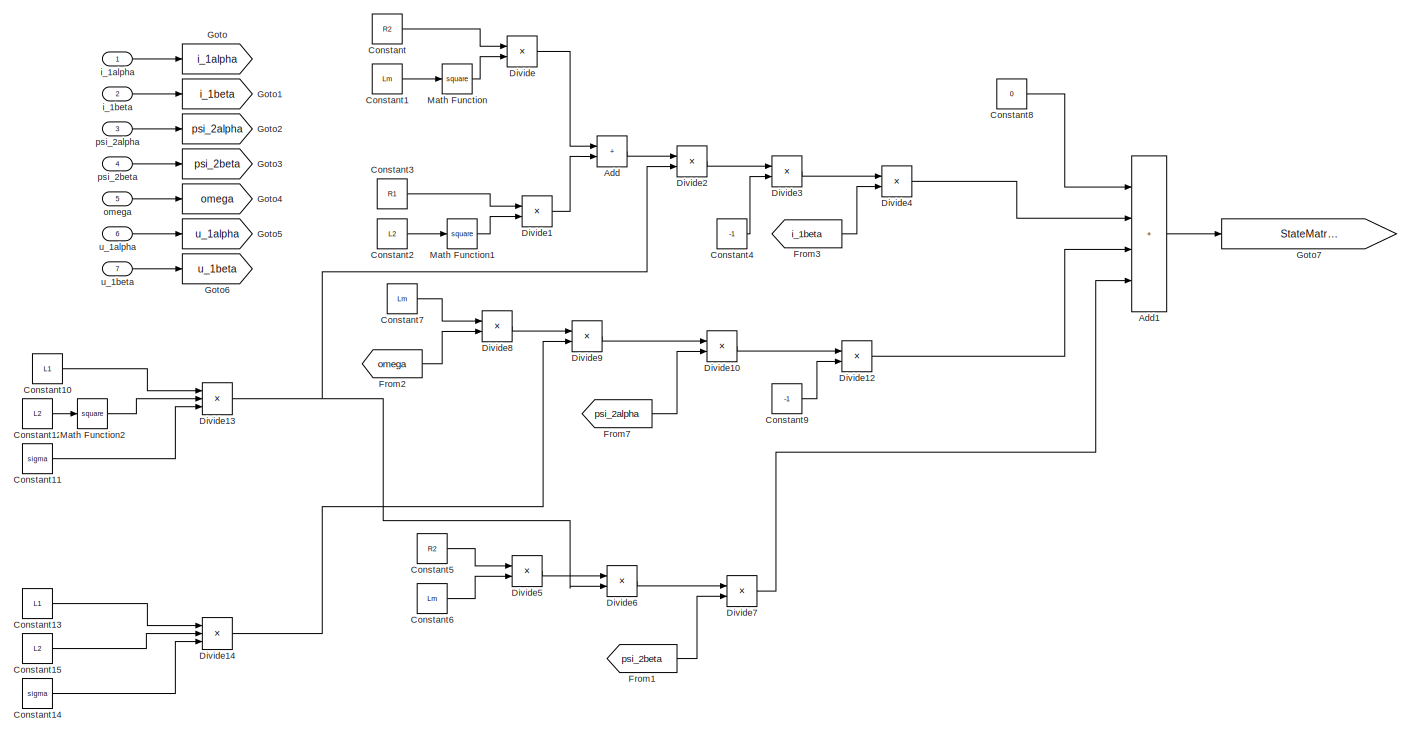
[diagram: d_i_1beta - part 1/3, center side, full height]
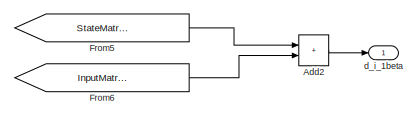
[diagram: d_i_1beta - part 2/3, top right region]
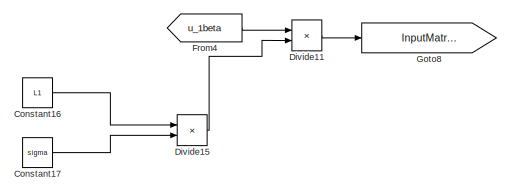
[diagram: d_i_1beta - part 3/3, bottom left region]
BLOCK [SubSystem] d_i_1beta
BLOCK [Sum] d_i_1beta/Add
  IconShape = rectangular
BLOCK [Sum] d_i_1beta/Add1
  IconShape = rectangular
  Inputs = ++++
BLOCK [Sum] d_i_1beta/Add2
  IconShape = rectangular
BLOCK [Constant] d_i_1beta/Constant
  Value = R2
BLOCK [Constant] d_i_1beta/Constant1
  Value = Lm
BLOCK [Constant] d_i_1beta/Constant10
  Value = L1
BLOCK [Constant] d_i_1beta/Constant11
  Value = sigma
BLOCK [Constant] d_i_1beta/Constant12
  Value = L2
BLOCK [Constant] d_i_1beta/Constant13
  Value = L1
BLOCK [Constant] d_i_1beta/Constant14
  Value = sigma
BLOCK [Constant] d_i_1beta/Constant15
  Value = L2
BLOCK [Constant] d_i_1beta/Constant16
  Value = L1
BLOCK [Constant] d_i_1beta/Constant17
  Value = sigma
BLOCK [Constant] d_i_1beta/Constant2
  Value = L2
BLOCK [Constant] d_i_1beta/Constant3
  Value = R1
BLOCK [Constant] d_i_1beta/Constant4
  Value = -1
BLOCK [Constant] d_i_1beta/Constant5
  Value = R2
BLOCK [Constant] d_i_1beta/Constant6
  Value = Lm
BLOCK [Constant] d_i_1beta/Constant7
  Value = Lm
BLOCK [Constant] d_i_1beta/Constant8
  Value = 0
BLOCK [Constant] d_i_1beta/Constant9
  Value = -1
BLOCK [Product] d_i_1beta/Divide
  Inputs = **
BLOCK [Product] d_i_1beta/Divide1
  Inputs = **
BLOCK [Product] d_i_1beta/Divide10
  Inputs = **
BLOCK [Product] d_i_1beta/Divide11
  Inputs = */
BLOCK [Product] d_i_1beta/Divide12
  Inputs = **
BLOCK [Product] d_i_1beta/Divide13
  Inputs = ***
BLOCK [Product] d_i_1beta/Divide14
  Inputs = ***
BLOCK [Product] d_i_1beta/Divide15
  Inputs = **
BLOCK [Product] d_i_1beta/Divide2
  Inputs = */
BLOCK [Product] d_i_1beta/Divide3
  Inputs = **
BLOCK [Product] d_i_1beta/Divide4
  Inputs = **
BLOCK [Product] d_i_1beta/Divide5
  Inputs = **
BLOCK [Product] d_i_1beta/Divide6
  Inputs = */
BLOCK [Product] d_i_1beta/Divide7
  Inputs = **
BLOCK [Product] d_i_1beta/Divide8
  Inputs = **
BLOCK [Product] d_i_1beta/Divide9
  Inputs = */
BLOCK [From] d_i_1beta/From1
  GotoTag = psi_2beta
BLOCK [From] d_i_1beta/From2
  GotoTag = omega
BLOCK [From] d_i_1beta/From3
  GotoTag = i_1beta
BLOCK [From] d_i_1beta/From4
  GotoTag = u_1beta
BLOCK [From] d_i_1beta/From5
  GotoTag = StateMatrix_x_StateVector
BLOCK [From] d_i_1beta/From6
  GotoTag = InputMatrix_x_Input
BLOCK [From] d_i_1beta/From7
  GotoTag = psi_2alpha
BLOCK [Goto] d_i_1beta/Goto
  GotoTag = i_1alpha
BLOCK [Goto] d_i_1beta/Goto1
  GotoTag = i_1beta
BLOCK [Goto] d_i_1beta/Goto2
  GotoTag = psi_2alpha
BLOCK [Goto] d_i_1beta/Goto3
  GotoTag = psi_2beta
BLOCK [Goto] d_i_1beta/Goto4
  GotoTag = omega
BLOCK [Goto] d_i_1beta/Goto5
  GotoTag = u_1alpha
BLOCK [Goto] d_i_1beta/Goto6
  GotoTag = u_1beta
BLOCK [Goto] d_i_1beta/Goto7
  GotoTag = StateMatrix_x_StateVector
BLOCK [Goto] d_i_1beta/Goto8
  GotoTag = InputMatrix_x_Input
BLOCK [Math] d_i_1beta/Math Function
  Operator = square
BLOCK [Math] d_i_1beta/Math Function1
  Operator = square
BLOCK [Math] d_i_1beta/Math Function2
  Operator = square
BLOCK [Outport] d_i_1beta/d_i_1beta
BLOCK [Inport] d_i_1beta/i_1alpha
BLOCK [Inport] d_i_1beta/i_1beta
  Port = 2
BLOCK [Inport] d_i_1beta/omega
  Port = 5
BLOCK [Inport] d_i_1beta/psi_2alpha
  Port = 3
BLOCK [Inport] d_i_1beta/psi_2beta
  Port = 4
BLOCK [Inport] d_i_1beta/u_1alpha
  Port = 6
BLOCK [Inport] d_i_1beta/u_1beta
  Port = 7
BLOCK [SubSystem] d_psi_2alpha
BLOCK [Sum] d_psi_2alpha/Add1
  IconShape = rectangular
  Inputs = ++++
BLOCK [Sum] d_psi_2alpha/Add2
  IconShape = rectangular
BLOCK [Constant] d_psi_2alpha/Constant
  Value = 0
BLOCK [Constant] d_psi_2alpha/Constant1
  Value = -1
BLOCK [Constant] d_psi_2alpha/Constant2
  Value = -1
BLOCK [Constant] d_psi_2alpha/Constant3
  Value = R2
BLOCK [Constant] d_psi_2alpha/Constant4
  Value = L2
BLOCK [Constant] d_psi_2alpha/Constant5
  Value = Lm
BLOCK [Constant] d_psi_2alpha/Constant6
  Value = R2
BLOCK [Constant] d_psi_2alpha/Constant7
  Value = L2
BLOCK [Constant] d_psi_2alpha/Constant8
  Value = 0
BLOCK [Product] d_psi_2alpha/Divide
  Inputs = **
BLOCK [Product] d_psi_2alpha/Divide1
  Inputs = **
BLOCK [Product] d_psi_2alpha/Divide2
  Inputs = */
BLOCK [Product] d_psi_2alpha/Divide3
  Inputs = **
BLOCK [Product] d_psi_2alpha/Divide4
  Inputs = **
BLOCK [Product] d_psi_2alpha/Divide5
  Inputs = **
BLOCK [Product] d_psi_2alpha/Divide6
  Inputs = */
BLOCK [Product] d_psi_2alpha/Divide7
  Inputs = **
BLOCK [From] d_psi_2alpha/From
  GotoTag = omega
BLOCK [From] d_psi_2alpha/From1
  GotoTag = psi_2beta
BLOCK [From] d_psi_2alpha/From2
  GotoTag = psi_2alpha
BLOCK [From] d_psi_2alpha/From3
  GotoTag = i_1alpha
BLOCK [From] d_psi_2alpha/From5
  GotoTag = StateMatrix_x_StateVector
BLOCK [From] d_psi_2alpha/From6
  GotoTag = InputMatrix_x_Input
BLOCK [Goto] d_psi_2alpha/Goto
  GotoTag = i_1alpha
BLOCK [Goto] d_psi_2alpha/Goto1
  GotoTag = i_1beta
BLOCK [Goto] d_psi_2alpha/Goto2
  GotoTag = psi_2alpha
BLOCK [Goto] d_psi_2alpha/Goto3
  GotoTag = psi_2beta
BLOCK [Goto] d_psi_2alpha/Goto4
  GotoTag = omega
BLOCK [Goto] d_psi_2alpha/Goto5
  GotoTag = u_1alpha
BLOCK [Goto] d_psi_2alpha/Goto6
  GotoTag = u_1beta
BLOCK [Goto] d_psi_2alpha/Goto7
  GotoTag = StateMatrix_x_StateVector
BLOCK [Goto] d_psi_2alpha/Goto8
  GotoTag = InputMatrix_x_Input
BLOCK [Outport] d_psi_2alpha/d_psi_2alpha
BLOCK [Inport] d_psi_2alpha/i_1alpha
BLOCK [Inport] d_psi_2alpha/i_1beta
  Port = 2
BLOCK [Inport] d_psi_2alpha/omega
  Port = 5
BLOCK [Inport] d_psi_2alpha/psi_2alpha
  Port = 3
BLOCK [Inport] d_psi_2alpha/psi_2beta
  Port = 4
BLOCK [Inport] d_psi_2alpha/u_1alpha
  Port = 6
BLOCK [Inport] d_psi_2alpha/u_1beta
  Port = 7
BLOCK [SubSystem] d_psi_2beta
BLOCK [Sum] d_psi_2beta/Add1
  IconShape = rectangular
  Inputs = ++++
BLOCK [Sum] d_psi_2beta/Add2
  IconShape = rectangular
BLOCK [Constant] d_psi_2beta/Constant
  Value = 0
BLOCK [Constant] d_psi_2beta/Constant2
  Value = -1
BLOCK [Constant] d_psi_2beta/Constant3
  Value = R2
BLOCK [Constant] d_psi_2beta/Constant4
  Value = L2
BLOCK [Constant] d_psi_2beta/Constant5
  Value = Lm
BLOCK [Constant] d_psi_2beta/Constant6
  Value = R2
BLOCK [Constant] d_psi_2beta/Constant7
  Value = L2
BLOCK [Constant] d_psi_2beta/Constant8
  Value = 0
BLOCK [Product] d_psi_2beta/Divide1
  Inputs = **
BLOCK [Product] d_psi_2beta/Divide2
  Inputs = */
BLOCK [Product] d_psi_2beta/Divide3
  Inputs = **
BLOCK [Product] d_psi_2beta/Divide4
  Inputs = **
BLOCK [Product] d_psi_2beta/Divide5
  Inputs = **
BLOCK [Product] d_psi_2beta/Divide6
  Inputs = */
BLOCK [Product] d_psi_2beta/Divide7
  Inputs = **
BLOCK [From] d_psi_2beta/From
  GotoTag = omega
BLOCK [From] d_psi_2beta/From1
  GotoTag = psi_2alpha
BLOCK [From] d_psi_2beta/From2
  GotoTag = psi_2beta
BLOCK [From] d_psi_2beta/From3
  GotoTag = i_1beta
BLOCK [From] d_psi_2beta/From5
  GotoTag = StateMatrix_x_StateVector
BLOCK [From] d_psi_2beta/From6
  GotoTag = InputMatrix_x_Input
BLOCK [Goto] d_psi_2beta/Goto
  GotoTag = i_1alpha
BLOCK [Goto] d_psi_2beta/Goto1
  GotoTag = i_1beta
BLOCK [Goto] d_psi_2beta/Goto2
  GotoTag = psi_2alpha
BLOCK [Goto] d_psi_2beta/Goto3
  GotoTag = psi_2beta
BLOCK [Goto] d_psi_2beta/Goto4
  GotoTag = omega
BLOCK [Goto] d_psi_2beta/Goto5
  GotoTag = u_1alpha
BLOCK [Goto] d_psi_2beta/Goto6
  GotoTag = u_1beta
BLOCK [Goto] d_psi_2beta/Goto7
  GotoTag = StateMatrix_x_StateVector
BLOCK [Goto] d_psi_2beta/Goto8
  GotoTag = InputMatrix_x_Input
BLOCK [Outport] d_psi_2beta/d_psi_2beta
BLOCK [Inport] d_psi_2beta/i_1alpha
BLOCK [Inport] d_psi_2beta/i_1beta
  Port = 2
BLOCK [Inport] d_psi_2beta/omega
  Port = 5
BLOCK [Inport] d_psi_2beta/psi_2alpha
  Port = 3
BLOCK [Inport] d_psi_2beta/psi_2beta
  Port = 4
BLOCK [Inport] d_psi_2beta/u_1alpha
  Port = 6
BLOCK [Inport] d_psi_2beta/u_1beta
  Port = 7
BLOCK [SubSystem] i2
BLOCK [Sum] i2/Add2
  IconShape = rectangular
  Inputs = +-
BLOCK [Constant] i2/Constant6
  Value = Lm
BLOCK [Constant] i2/Constant7
  Value = L2
BLOCK [Product] i2/Divide4
  Inputs = **
BLOCK [Product] i2/Divide5
  Inputs = */
BLOCK [Mux] i2/Mux2
  DisplayOption = bar
  Inputs = 2
BLOCK [Inport] i2/i_1_alpha_beta
  Port = 3
BLOCK [Outport] i2/i_2alpha_beta
BLOCK [Inport] i2/psi_2alpha
BLOCK [Inport] i2/psi_2beta
  Port = 2
BLOCK [Sin] ua
  Amplitude = sqrt(2)*230
  Frequency = 2*pi*50
  SampleTime = 0
BLOCK [Sin] ub
  Amplitude = sqrt(2)*230
  Frequency = 2*pi*50
  Phase = (2/3)*pi
  SampleTime = 0
BLOCK [Sin] uc
  Amplitude = sqrt(2)*230
  Frequency = 2*pi*50
  Phase = -(2/3)*pi
  SampleTime = 0
ANNOTATION (root): Clarke Transform
ANNOTATION (root): Core of the Model
ANNOTATION (root): I-n Motor Model
ANNOTATION (root): Load Torque and Speed
ANNOTATION (root): Magnetic flux
ANNOTATION (root): Miscellaneous
ANNOTATION (root): Rotor current
ANNOTATION (root): Routing
ANNOTATION (root): Static Moment Curve Calculation
ANNOTATION (root): Torque Calculation
ANNOTATION (root): Voltage Source
ANNOTATION d_psi_2alpha: je to jen pro úplnost
LINE 1-D Lookup Table2:1 -> Manual Switch1:1
LINE 1-D Lookup Table:1 -> Manual Switch:2
LINE Add1:1 -> Divide3:2
LINE Add:1 -> Divide:1
LINE ClarkeTransform/Add1:1 -> ClarkeTransform/Divide2:1
LINE ClarkeTransform/Add2:1 -> ClarkeTransform/Divide3:1
LINE ClarkeTransform/Demux4:1 -> ClarkeTransform/Gain4:1
LINE ClarkeTransform/Demux4:2 -> ClarkeTransform/Gain:1
LINE ClarkeTransform/Demux4:3 -> ClarkeTransform/Gain1:1
LINE ClarkeTransform/Demux5:1 -> ClarkeTransform/Gain5:1
LINE ClarkeTransform/Demux5:2 -> ClarkeTransform/Gain2:1
LINE ClarkeTransform/Demux5:3 -> ClarkeTransform/Gain3:1
LINE ClarkeTransform/Divide2:1 -> ClarkeTransform/Mux2:1
LINE ClarkeTransform/Divide3:1 -> ClarkeTransform/Mux2:2
LINE ClarkeTransform/From17:1 -> ClarkeTransform/Divide2:2
LINE ClarkeTransform/From19:1 -> ClarkeTransform/Divide3:2
LINE ClarkeTransform/Gain1:1 -> ClarkeTransform/Add1:3
LINE ClarkeTransform/Gain2:1 -> ClarkeTransform/Add2:2
LINE ClarkeTransform/Gain3:1 -> ClarkeTransform/Add2:3
LINE ClarkeTransform/Gain4:1 -> ClarkeTransform/Add1:1
LINE ClarkeTransform/Gain5:1 -> ClarkeTransform/Add2:1
LINE ClarkeTransform/Gain:1 -> ClarkeTransform/Add1:2
LINE ClarkeTransform/K:1 -> ClarkeTransform/Goto:1
LINE ClarkeTransform/Mux2:1 -> ClarkeTransform/u1_in_alpha_beta:1
NET ClarkeTransform/u_1source:1 -> ClarkeTransform/Demux4:1, ClarkeTransform/Demux5:1
NET ClarkeTransform:1 -> Demux4:1, Goto15:1
NET Clock:1 -> 1-D Lookup Table2:1, 1-D Lookup Table:1
LINE Constant1:1 -> Divide:2
LINE Constant2:1 -> Divide1:2
LINE Constant3:1 -> Goto11:1
LINE Constant4:1 -> Divide2:2
LINE Constant5:1 -> Divide3:1
LINE Constant6:1 -> Divide4:2
LINE Constant7:1 -> Divide5:2
LINE Constant:1 -> Manual Switch1:2
LINE Demux1:1 -> d_i_1beta:1
LINE Demux1:2 -> d_i_1beta:2
LINE Demux1:3 -> d_i_1beta:3
LINE Demux1:4 -> d_i_1beta:4
LINE Demux1:5 -> d_i_1beta:5
LINE Demux1:6 -> d_i_1beta:6
LINE Demux1:7 -> d_i_1beta:7
LINE Demux2:1 -> d_psi_2alpha:1
LINE Demux2:2 -> d_psi_2alpha:2
LINE Demux2:3 -> d_psi_2alpha:3
LINE Demux2:4 -> d_psi_2alpha:4
LINE Demux2:5 -> d_psi_2alpha:5
LINE Demux2:6 -> d_psi_2alpha:6
LINE Demux2:7 -> d_psi_2alpha:7
LINE Demux3:1 -> d_psi_2beta:1
LINE Demux3:2 -> d_psi_2beta:2
LINE Demux3:3 -> d_psi_2beta:3
LINE Demux3:4 -> d_psi_2beta:4
LINE Demux3:5 -> d_psi_2beta:5
LINE Demux3:6 -> d_psi_2beta:6
LINE Demux3:7 -> d_psi_2beta:7
NET Demux4:1 -> Goto12:1, Scope15:1
LINE Demux4:2 -> Goto13:1
LINE Demux5:1 -> Goto24:1
LINE Demux5:2 -> Goto25:1
LINE Demux6:1 -> Goto21:1
LINE Demux6:2 -> Goto22:1
LINE Demux:1 -> d_i_1alpha:1
LINE Demux:2 -> d_i_1alpha:2
LINE Demux:3 -> d_i_1alpha:3
LINE Demux:4 -> d_i_1alpha:4
LINE Demux:5 -> d_i_1alpha:5
LINE Demux:6 -> d_i_1alpha:6
LINE Demux:7 -> d_i_1alpha:7
LINE Divide1:1 -> Integrator4:1
NET Divide2:1 -> Divide4:1, Goto14:1
NET Divide3:1 -> Demux6:1, Goto20:1
LINE Divide4:1 -> Divide5:1
LINE Divide5:1 -> Goto16:1
LINE Divide:1 -> Divide1:1
LINE From10:1 -> Demux3:1
LINE From11:1 -> Mh:1
LINE From12:1 -> Mh:2
LINE From13:1 -> Mh:3
LINE From14:1 -> Mh:4
LINE From15:1 -> Add:1
NET From16:1 -> Scope:1, To Workspace:1
NET From17:1 -> Scope1:1, To Workspace1:1
NET From18:1 -> Scope2:1, To Workspace2:1
NET From19:1 -> Scope3:1, To Workspace3:1
LINE From1:1 -> Mux:2
LINE From20:1 -> ClarkeTransform:1
LINE From21:1 -> ClarkeTransform:2
NET From22:1 -> Scope4:1, To Workspace4:1
LINE From23:1 -> Module of Vector1:1
LINE From24:1 -> Add1:1
LINE From25:1 -> Mux4:1
LINE From26:1 -> Mux4:2
LINE From27:1 -> Add1:2
LINE From28:1 -> i2:1
LINE From29:1 -> i2:2
LINE From2:1 -> Mux:3
LINE From30:1 -> i2:3
NET From31:1 -> Scope6:1, To Workspace6:1
NET From32:1 -> Scope7:1, To Workspace13:1
LINE From33:1 -> Module of Vector:1
NET From34:1 -> Scope10:1, To Workspace8:1
NET From35:1 -> Scope11:1, To Workspace9:1
LINE From36:1 -> Module of Vector2:1
LINE From37:1 -> Mux2:1
LINE From38:1 -> Mux2:2
LINE From39:1 -> Module of Vector:2
LINE From3:1 -> Mux:4
LINE From40:1 -> Module of Vector1:2
LINE From41:1 -> Module of Vector2:2
LINE From42:1 -> Mh Static:1
NET From43:1 -> Scope14:1, To Workspace11:1
LINE From44:1 -> XY Graph:2
NET From45:1 -> Scope13:1, Scope16:1
NET From46:1 -> Scope13:2, To Workspace12:1
LINE From47:1 -> XY Graph:1
LINE From48:1 -> Slip:1
LINE From49:1 -> XY Graph1:2
LINE From4:1 -> Mux:5
LINE From50:1 -> XY Graph1:1
LINE From51:1 -> Scope8:1
LINE From52:1 -> I-n model:2
LINE From5:1 -> Mux:6
LINE From6:1 -> Mux:7
LINE From7:1 -> Demux:1
LINE From8:1 -> Demux1:1
LINE From9:1 -> Demux2:1
LINE From:1 -> Mux:1
LINE I-n model/Add1:1 -> I-n model/Integrator1:1
LINE I-n model/Add:1 -> I-n model/Integrator:1
LINE I-n model/Atan2:1 -> I-n model/Theta:1
LINE I-n model/Constant10:1 -> I-n model/Divide9:1
LINE I-n model/Constant11:1 -> I-n model/Divide9:3
LINE I-n model/Constant12:1 -> I-n model/Divide10:2
LINE I-n model/Constant13:1 -> I-n model/Divide7:1
LINE I-n model/Constant14:1 -> I-n model/Divide9:2
LINE I-n model/Constant2:1 -> I-n model/Divide10:1
LINE I-n model/Constant4:1 -> I-n model/Divide6:2
LINE I-n model/Constant5:1 -> I-n model/Divide8:2
LINE I-n model/Constant7:1 -> I-n model/Divide7:2
LINE I-n model/Constant8:1 -> I-n model/Divide8:1
LINE I-n model/Constant9:1 -> I-n model/Divide8:3
LINE I-n model/Demux:1 -> I-n model/Divide:1
LINE I-n model/Demux:2 -> I-n model/Divide3:1
LINE I-n model/Divide10:1 -> I-n model/Divide4:2
LINE I-n model/Divide1:1 -> I-n model/Add:2
LINE I-n model/Divide2:1 -> I-n model/Add:3
LINE I-n model/Divide3:1 -> I-n model/Add1:1
LINE I-n model/Divide4:1 -> I-n model/Add1:2
LINE I-n model/Divide5:1 -> I-n model/Add1:3
LINE I-n model/Divide6:1 -> I-n model/Goto:1
LINE I-n model/Divide7:1 -> I-n model/Divide1:2
LINE I-n model/Divide8:1 -> I-n model/Divide:2
LINE I-n model/Divide9:1 -> I-n model/Divide3:2
LINE I-n model/Divide:1 -> I-n model/Add:1
LINE I-n model/From1:1 -> I-n model/Divide2:2
LINE I-n model/From2:1 -> I-n model/Divide1:1
LINE I-n model/From3:1 -> I-n model/Divide4:1
LINE I-n model/From4:1 -> I-n model/Divide5:1
LINE I-n model/From5:1 -> I-n model/Divide5:2
LINE I-n model/From6:1 -> I-n model/Atan2:1
LINE I-n model/From7:1 -> I-n model/Atan2:2
NET I-n model/From8:1 -> I-n model/Module of Vector1:1, I-n model/Mux:1
NET I-n model/From9:1 -> I-n model/Module of Vector1:2, I-n model/Mux:2
LINE I-n model/From:1 -> I-n model/Divide2:1
LINE I-n model/Integrator1:1 -> I-n model/Goto2:1
LINE I-n model/Integrator:1 -> I-n model/Goto1:1
LINE I-n model/Measured Motor Current alpha beta:1 -> I-n model/Demux:1
LINE I-n model/Module of Vector1/Add2:1 -> I-n model/Module of Vector1/Sqrt:1
LINE I-n model/Module of Vector1/In1:1 -> I-n model/Module of Vector1/Math Function:1
LINE I-n model/Module of Vector1/In2:1 -> I-n model/Module of Vector1/Math Function1:1
LINE I-n model/Module of Vector1/Math Function1:1 -> I-n model/Module of Vector1/Add2:2
LINE I-n model/Module of Vector1/Math Function:1 -> I-n model/Module of Vector1/Add2:1
LINE I-n model/Module of Vector1/Sqrt:1 -> I-n model/Module of Vector1/Psi:1
LINE I-n model/Module of Vector1:1 -> I-n model/Psi_2_module:1
LINE I-n model/Mux:1 -> I-n model/Psi_2_alpha_beta:1
LINE I-n model/Omega:1 -> I-n model/Divide6:1
LINE I-n model:2 -> Scope17:1
LINE Integrator1:1 -> Goto1:1
LINE Integrator2:1 -> Goto2:1
LINE Integrator3:1 -> Goto3:1
NET Integrator4:1 -> Divide2:1, Goto6:1
LINE Integrator:1 -> Goto:1
LINE Manual Switch1:1 -> Manual Switch:1
LINE Manual Switch:1 -> Add:2
LINE Mh Static/Add3:1 -> Mh Static/Divide10:1
LINE Mh Static/Add4:1 -> Mh Static/Math Function:1
LINE Mh Static/Add6:1 -> Mh Static/Divide15:1
LINE Mh Static/Constant10:1 -> Mh Static/Divide6:3
LINE Mh Static/Constant11:1 -> Mh Static/Divide6:4
LINE Mh Static/Constant14:1 -> Mh Static/Divide8:1
LINE Mh Static/Constant15:1 -> Mh Static/Add4:1
LINE Mh Static/Constant16:1 -> Mh Static/Divide11:1
LINE Mh Static/Constant21:1 -> Mh Static/Divide15:2
LINE Mh Static/Constant22:1 -> Mh Static/Add6:1
LINE Mh Static/Constant23:1 -> Mh Static/Add6:2
LINE Mh Static/Constant8:1 -> Mh Static/Divide6:1
LINE Mh Static/Constant9:1 -> Mh Static/Divide6:2
LINE Mh Static/Divide10:1 -> Mh Static/Mh Static:1
LINE Mh Static/Divide11:1 -> Mh Static/Add4:2
LINE Mh Static/Divide15:1 -> Mh Static/Math Function2:1
LINE Mh Static/Divide6:1 -> Mh Static/Divide7:1
LINE Mh Static/Divide7:1 -> Mh Static/Divide10:2
LINE Mh Static/Divide8:1 -> Mh Static/Divide7:2
LINE Mh Static/Math Function2:1 -> Mh Static/Add3:2
LINE Mh Static/Math Function:1 -> Mh Static/Add3:1
LINE Mh Static/Reprezentace s s*omega1*L2sigma/Add5:1 -> Mh Static/Reprezentace s s*omega1*L2sigma/Out1:1
LINE Mh Static/Reprezentace s s*omega1*L2sigma/Constant17:1 -> Mh Static/Reprezentace s s*omega1*L2sigma/Divide12:2
LINE Mh Static/Reprezentace s s*omega1*L2sigma/Constant18:1 -> Mh Static/Reprezentace s s*omega1*L2sigma/Divide12:1
LINE Mh Static/Reprezentace s s*omega1*L2sigma/Constant19:1 -> Mh Static/Reprezentace s s*omega1*L2sigma/Divide13:2
LINE Mh Static/Reprezentace s s*omega1*L2sigma/Constant20:1 -> Mh Static/Reprezentace s s*omega1*L2sigma/Divide14:2
LINE Mh Static/Reprezentace s s*omega1*L2sigma/Divide12:1 -> Mh Static/Reprezentace s s*omega1*L2sigma/Add5:1
LINE Mh Static/Reprezentace s s*omega1*L2sigma/Divide13:1 -> Mh Static/Reprezentace s s*omega1*L2sigma/Add5:2
LINE Mh Static/Reprezentace s s*omega1*L2sigma/Divide14:1 -> Mh Static/Reprezentace s s*omega1*L2sigma/Divide13:1
LINE Mh Static/Reprezentace s s*omega1*L2sigma/Slip:1 -> Mh Static/Reprezentace s s*omega1*L2sigma/Divide14:1
NET Mh Static/Slip:1 -> Mh Static/Divide11:2, Mh Static/Divide8:2
LINE Mh Static:1 -> Goto26:1
LINE Mh/Add:1 -> Mh/Divide3:1
LINE Mh/Constant1:1 -> Mh/Divide:2
LINE Mh/Constant2:1 -> Mh/Divide2:1
LINE Mh/Constant3:1 -> Mh/Divide2:2
LINE Mh/Constant:1 -> Mh/Divide:1
LINE Mh/Divide1:1 -> Mh/Divide3:2
LINE Mh/Divide2:1 -> Mh/Divide1:2
LINE Mh/Divide3:1 -> Mh/Mh:1
LINE Mh/Divide4:1 -> Mh/Add:1
LINE Mh/Divide5:1 -> Mh/Add:2
LINE Mh/Divide:1 -> Mh/Divide1:1
LINE Mh/i_1alpha:1 -> Mh/Divide5:2
LINE Mh/i_1beta:1 -> Mh/Divide4:1
LINE Mh/phi_2alpha:1 -> Mh/Divide4:2
LINE Mh/phi_2beta:1 -> Mh/Divide5:1
LINE Mh:1 -> Goto5:1
LINE Module of Vector/Add2:1 -> Module of Vector/Sqrt:1
LINE Module of Vector/In1:1 -> Module of Vector/Math Function:1
LINE Module of Vector/In2:1 -> Module of Vector/Math Function1:1
LINE Module of Vector/Math Function1:1 -> Module of Vector/Add2:2
LINE Module of Vector/Math Function:1 -> Module of Vector/Add2:1
LINE Module of Vector/Sqrt:1 -> Module of Vector/Out1:1
LINE Module of Vector1/Add2:1 -> Module of Vector1/Sqrt:1
LINE Module of Vector1/In1:1 -> Module of Vector1/Math Function:1
LINE Module of Vector1/In2:1 -> Module of Vector1/Math Function1:1
LINE Module of Vector1/Math Function1:1 -> Module of Vector1/Add2:2
LINE Module of Vector1/Math Function:1 -> Module of Vector1/Add2:1
LINE Module of Vector1/Sqrt:1 -> Module of Vector1/Out1:1
NET Module of Vector1:1 -> Scope5:1, To Workspace5:1
LINE Module of Vector2/Add2:1 -> Module of Vector2/Sqrt:1
LINE Module of Vector2/In1:1 -> Module of Vector2/Math Function:1
LINE Module of Vector2/In2:1 -> Module of Vector2/Math Function1:1
LINE Module of Vector2/Math Function1:1 -> Module of Vector2/Add2:2
LINE Module of Vector2/Math Function:1 -> Module of Vector2/Add2:1
LINE Module of Vector2/Sqrt:1 -> Module of Vector2/Out1:1
NET Module of Vector2:1 -> Scope12:1, To Workspace10:1
NET Module of Vector:1 -> Scope9:1, To Workspace7:1
LINE Mux1:1 -> Goto10:1
LINE Mux2:1 -> Goto17:1
NET Mux4:1 -> Goto19:1, I-n model:1
LINE Mux:1 -> Goto4:1
LINE Slip/Add2:1 -> Slip/Divide9:1
LINE Slip/Constant12:1 -> Slip/Add2:1
LINE Slip/Constant13:1 -> Slip/Divide9:2
LINE Slip/Divide9:1 -> Slip/Slip:1
LINE Slip/omega:1 -> Slip/Add2:2
LINE Slip:1 -> Goto18:1
LINE d_i_1alpha/Add1:1 -> d_i_1alpha/Goto7:1
LINE d_i_1alpha/Add2:1 -> d_i_1alpha/d_i_1alpha:1
LINE d_i_1alpha/Add:1 -> d_i_1alpha/Divide2:1
LINE d_i_1alpha/Constant10:1 -> d_i_1alpha/Divide12:1
LINE d_i_1alpha/Constant11:1 -> d_i_1alpha/Divide12:3
LINE d_i_1alpha/Constant12:1 -> d_i_1alpha/Divide13:1
LINE d_i_1alpha/Constant13:1 -> d_i_1alpha/Divide14:1
LINE d_i_1alpha/Constant14:1 -> d_i_1alpha/Divide14:3
LINE d_i_1alpha/Constant15:1 -> d_i_1alpha/Divide14:2
LINE d_i_1alpha/Constant16:1 -> d_i_1alpha/Divide13:2
LINE d_i_1alpha/Constant1:1 -> d_i_1alpha/Math Function:1
LINE d_i_1alpha/Constant2:1 -> d_i_1alpha/Math Function1:1
LINE d_i_1alpha/Constant3:1 -> d_i_1alpha/Divide1:1
LINE d_i_1alpha/Constant4:1 -> d_i_1alpha/Divide3:2
LINE d_i_1alpha/Constant5:1 -> d_i_1alpha/Divide5:1
LINE d_i_1alpha/Constant6:1 -> d_i_1alpha/Divide5:2
LINE d_i_1alpha/Constant7:1 -> d_i_1alpha/Divide8:1
LINE d_i_1alpha/Constant8:1 -> d_i_1alpha/Add1:2
LINE d_i_1alpha/Constant9:1 -> d_i_1alpha/Math Function2:1
LINE d_i_1alpha/Constant:1 -> d_i_1alpha/Divide:1
LINE d_i_1alpha/Divide10:1 -> d_i_1alpha/Add1:4
LINE d_i_1alpha/Divide11:1 -> d_i_1alpha/Goto8:1
NET d_i_1alpha/Divide12:1 -> d_i_1alpha/Divide2:2, d_i_1alpha/Divide6:2
LINE d_i_1alpha/Divide13:1 -> d_i_1alpha/Divide11:2
LINE d_i_1alpha/Divide14:1 -> d_i_1alpha/Divide9:2
LINE d_i_1alpha/Divide1:1 -> d_i_1alpha/Add:2
LINE d_i_1alpha/Divide2:1 -> d_i_1alpha/Divide3:1
LINE d_i_1alpha/Divide3:1 -> d_i_1alpha/Divide4:1
LINE d_i_1alpha/Divide4:1 -> d_i_1alpha/Add1:1
LINE d_i_1alpha/Divide5:1 -> d_i_1alpha/Divide6:1
LINE d_i_1alpha/Divide6:1 -> d_i_1alpha/Divide7:1
LINE d_i_1alpha/Divide7:1 -> d_i_1alpha/Add1:3
LINE d_i_1alpha/Divide8:1 -> d_i_1alpha/Divide9:1
LINE d_i_1alpha/Divide9:1 -> d_i_1alpha/Divide10:1
LINE d_i_1alpha/Divide:1 -> d_i_1alpha/Add:1
LINE d_i_1alpha/From1:1 -> d_i_1alpha/Divide7:2
LINE d_i_1alpha/From2:1 -> d_i_1alpha/Divide8:2
LINE d_i_1alpha/From3:1 -> d_i_1alpha/Divide10:2
LINE d_i_1alpha/From4:1 -> d_i_1alpha/Divide11:1
LINE d_i_1alpha/From5:1 -> d_i_1alpha/Add2:1
LINE d_i_1alpha/From6:1 -> d_i_1alpha/Add2:2
LINE d_i_1alpha/From:1 -> d_i_1alpha/Divide4:2
LINE d_i_1alpha/Math Function1:1 -> d_i_1alpha/Divide1:2
LINE d_i_1alpha/Math Function2:1 -> d_i_1alpha/Divide12:2
LINE d_i_1alpha/Math Function:1 -> d_i_1alpha/Divide:2
LINE d_i_1alpha/i_1alpha:1 -> d_i_1alpha/Goto:1
LINE d_i_1alpha/i_1beta:1 -> d_i_1alpha/Goto1:1
LINE d_i_1alpha/omega:1 -> d_i_1alpha/Goto4:1
LINE d_i_1alpha/psi_2alpha:1 -> d_i_1alpha/Goto2:1
LINE d_i_1alpha/psi_2beta:1 -> d_i_1alpha/Goto3:1
LINE d_i_1alpha/u_1alpha:1 -> d_i_1alpha/Goto5:1
LINE d_i_1alpha/u_1beta:1 -> d_i_1alpha/Goto6:1
LINE d_i_1alpha:1 -> Integrator:1
LINE d_i_1beta/Add1:1 -> d_i_1beta/Goto7:1
LINE d_i_1beta/Add2:1 -> d_i_1beta/d_i_1beta:1
LINE d_i_1beta/Add:1 -> d_i_1beta/Divide2:1
LINE d_i_1beta/Constant10:1 -> d_i_1beta/Divide13:1
LINE d_i_1beta/Constant11:1 -> d_i_1beta/Divide13:3
LINE d_i_1beta/Constant12:1 -> d_i_1beta/Math Function2:1
LINE d_i_1beta/Constant13:1 -> d_i_1beta/Divide14:1
LINE d_i_1beta/Constant14:1 -> d_i_1beta/Divide14:3
LINE d_i_1beta/Constant15:1 -> d_i_1beta/Divide14:2
LINE d_i_1beta/Constant16:1 -> d_i_1beta/Divide15:1
LINE d_i_1beta/Constant17:1 -> d_i_1beta/Divide15:2
LINE d_i_1beta/Constant1:1 -> d_i_1beta/Math Function:1
LINE d_i_1beta/Constant2:1 -> d_i_1beta/Math Function1:1
LINE d_i_1beta/Constant3:1 -> d_i_1beta/Divide1:1
LINE d_i_1beta/Constant4:1 -> d_i_1beta/Divide3:2
LINE d_i_1beta/Constant5:1 -> d_i_1beta/Divide5:1
LINE d_i_1beta/Constant6:1 -> d_i_1beta/Divide5:2
LINE d_i_1beta/Constant7:1 -> d_i_1beta/Divide8:1
LINE d_i_1beta/Constant8:1 -> d_i_1beta/Add1:1
LINE d_i_1beta/Constant9:1 -> d_i_1beta/Divide12:2
LINE d_i_1beta/Constant:1 -> d_i_1beta/Divide:1
LINE d_i_1beta/Divide10:1 -> d_i_1beta/Divide12:1
LINE d_i_1beta/Divide11:1 -> d_i_1beta/Goto8:1
LINE d_i_1beta/Divide12:1 -> d_i_1beta/Add1:3
NET d_i_1beta/Divide13:1 -> d_i_1beta/Divide2:2, d_i_1beta/Divide6:2
LINE d_i_1beta/Divide14:1 -> d_i_1beta/Divide9:2
LINE d_i_1beta/Divide15:1 -> d_i_1beta/Divide11:2
LINE d_i_1beta/Divide1:1 -> d_i_1beta/Add:2
LINE d_i_1beta/Divide2:1 -> d_i_1beta/Divide3:1
LINE d_i_1beta/Divide3:1 -> d_i_1beta/Divide4:1
LINE d_i_1beta/Divide4:1 -> d_i_1beta/Add1:2
LINE d_i_1beta/Divide5:1 -> d_i_1beta/Divide6:1
LINE d_i_1beta/Divide6:1 -> d_i_1beta/Divide7:1
LINE d_i_1beta/Divide7:1 -> d_i_1beta/Add1:4
LINE d_i_1beta/Divide8:1 -> d_i_1beta/Divide9:1
LINE d_i_1beta/Divide9:1 -> d_i_1beta/Divide10:1
LINE d_i_1beta/Divide:1 -> d_i_1beta/Add:1
LINE d_i_1beta/From1:1 -> d_i_1beta/Divide7:2
LINE d_i_1beta/From2:1 -> d_i_1beta/Divide8:2
LINE d_i_1beta/From3:1 -> d_i_1beta/Divide4:2
LINE d_i_1beta/From4:1 -> d_i_1beta/Divide11:1
LINE d_i_1beta/From5:1 -> d_i_1beta/Add2:1
LINE d_i_1beta/From6:1 -> d_i_1beta/Add2:2
LINE d_i_1beta/From7:1 -> d_i_1beta/Divide10:2
LINE d_i_1beta/Math Function1:1 -> d_i_1beta/Divide1:2
LINE d_i_1beta/Math Function2:1 -> d_i_1beta/Divide13:2
LINE d_i_1beta/Math Function:1 -> d_i_1beta/Divide:2
LINE d_i_1beta/i_1alpha:1 -> d_i_1beta/Goto:1
LINE d_i_1beta/i_1beta:1 -> d_i_1beta/Goto1:1
LINE d_i_1beta/omega:1 -> d_i_1beta/Goto4:1
LINE d_i_1beta/psi_2alpha:1 -> d_i_1beta/Goto2:1
LINE d_i_1beta/psi_2beta:1 -> d_i_1beta/Goto3:1
LINE d_i_1beta/u_1alpha:1 -> d_i_1beta/Goto5:1
LINE d_i_1beta/u_1beta:1 -> d_i_1beta/Goto6:1
LINE d_i_1beta:1 -> Integrator1:1
LINE d_psi_2alpha/Add1:1 -> d_psi_2alpha/Goto7:1
LINE d_psi_2alpha/Add2:1 -> d_psi_2alpha/d_psi_2alpha:1
LINE d_psi_2alpha/Constant1:1 -> d_psi_2alpha/Divide:2
LINE d_psi_2alpha/Constant2:1 -> d_psi_2alpha/Divide3:2
LINE d_psi_2alpha/Constant3:1 -> d_psi_2alpha/Divide2:1
LINE d_psi_2alpha/Constant4:1 -> d_psi_2alpha/Divide2:2
LINE d_psi_2alpha/Constant5:1 -> d_psi_2alpha/Divide5:1
LINE d_psi_2alpha/Constant6:1 -> d_psi_2alpha/Divide5:2
LINE d_psi_2alpha/Constant7:1 -> d_psi_2alpha/Divide6:2
LINE d_psi_2alpha/Constant8:1 -> d_psi_2alpha/Add1:2
LINE d_psi_2alpha/Constant:1 -> d_psi_2alpha/Goto8:1
LINE d_psi_2alpha/Divide1:1 -> d_psi_2alpha/Add1:4
LINE d_psi_2alpha/Divide2:1 -> d_psi_2alpha/Divide3:1
LINE d_psi_2alpha/Divide3:1 -> d_psi_2alpha/Divide4:1
LINE d_psi_2alpha/Divide4:1 -> d_psi_2alpha/Add1:3
LINE d_psi_2alpha/Divide5:1 -> d_psi_2alpha/Divide6:1
LINE d_psi_2alpha/Divide6:1 -> d_psi_2alpha/Divide7:1
LINE d_psi_2alpha/Divide7:1 -> d_psi_2alpha/Add1:1
LINE d_psi_2alpha/Divide:1 -> d_psi_2alpha/Divide1:1
LINE d_psi_2alpha/From1:1 -> d_psi_2alpha/Divide1:2
LINE d_psi_2alpha/From2:1 -> d_psi_2alpha/Divide4:2
LINE d_psi_2alpha/From3:1 -> d_psi_2alpha/Divide7:2
LINE d_psi_2alpha/From5:1 -> d_psi_2alpha/Add2:1
LINE d_psi_2alpha/From6:1 -> d_psi_2alpha/Add2:2
LINE d_psi_2alpha/From:1 -> d_psi_2alpha/Divide:1
LINE d_psi_2alpha/i_1alpha:1 -> d_psi_2alpha/Goto:1
LINE d_psi_2alpha/i_1beta:1 -> d_psi_2alpha/Goto1:1
LINE d_psi_2alpha/omega:1 -> d_psi_2alpha/Goto4:1
LINE d_psi_2alpha/psi_2alpha:1 -> d_psi_2alpha/Goto2:1
LINE d_psi_2alpha/psi_2beta:1 -> d_psi_2alpha/Goto3:1
LINE d_psi_2alpha/u_1alpha:1 -> d_psi_2alpha/Goto5:1
LINE d_psi_2alpha/u_1beta:1 -> d_psi_2alpha/Goto6:1
LINE d_psi_2alpha:1 -> Integrator2:1
LINE d_psi_2beta/Add1:1 -> d_psi_2beta/Goto7:1
LINE d_psi_2beta/Add2:1 -> d_psi_2beta/d_psi_2beta:1
LINE d_psi_2beta/Constant2:1 -> d_psi_2beta/Divide3:2
LINE d_psi_2beta/Constant3:1 -> d_psi_2beta/Divide2:1
LINE d_psi_2beta/Constant4:1 -> d_psi_2beta/Divide2:2
LINE d_psi_2beta/Constant5:1 -> d_psi_2beta/Divide5:1
LINE d_psi_2beta/Constant6:1 -> d_psi_2beta/Divide5:2
LINE d_psi_2beta/Constant7:1 -> d_psi_2beta/Divide6:2
LINE d_psi_2beta/Constant8:1 -> d_psi_2beta/Add1:1
LINE d_psi_2beta/Constant:1 -> d_psi_2beta/Goto8:1
LINE d_psi_2beta/Divide1:1 -> d_psi_2beta/Add1:3
LINE d_psi_2beta/Divide2:1 -> d_psi_2beta/Divide3:1
LINE d_psi_2beta/Divide3:1 -> d_psi_2beta/Divide4:1
LINE d_psi_2beta/Divide4:1 -> d_psi_2beta/Add1:4
LINE d_psi_2beta/Divide5:1 -> d_psi_2beta/Divide6:1
LINE d_psi_2beta/Divide6:1 -> d_psi_2beta/Divide7:1
LINE d_psi_2beta/Divide7:1 -> d_psi_2beta/Add1:2
LINE d_psi_2beta/From1:1 -> d_psi_2beta/Divide1:2
LINE d_psi_2beta/From2:1 -> d_psi_2beta/Divide4:2
LINE d_psi_2beta/From3:1 -> d_psi_2beta/Divide7:2
LINE d_psi_2beta/From5:1 -> d_psi_2beta/Add2:1
LINE d_psi_2beta/From6:1 -> d_psi_2beta/Add2:2
LINE d_psi_2beta/From:1 -> d_psi_2beta/Divide1:1
LINE d_psi_2beta/i_1alpha:1 -> d_psi_2beta/Goto:1
LINE d_psi_2beta/i_1beta:1 -> d_psi_2beta/Goto1:1
LINE d_psi_2beta/omega:1 -> d_psi_2beta/Goto4:1
LINE d_psi_2beta/psi_2alpha:1 -> d_psi_2beta/Goto2:1
LINE d_psi_2beta/psi_2beta:1 -> d_psi_2beta/Goto3:1
LINE d_psi_2beta/u_1alpha:1 -> d_psi_2beta/Goto5:1
LINE d_psi_2beta/u_1beta:1 -> d_psi_2beta/Goto6:1
LINE d_psi_2beta:1 -> Integrator3:1
LINE i2/Add2:1 -> i2/Divide5:1
LINE i2/Constant6:1 -> i2/Divide4:2
LINE i2/Constant7:1 -> i2/Divide5:2
LINE i2/Divide4:1 -> i2/Add2:2
LINE i2/Divide5:1 -> i2/i_2alpha_beta:1
LINE i2/Mux2:1 -> i2/Add2:1
LINE i2/i_1_alpha_beta:1 -> i2/Divide4:1
LINE i2/psi_2alpha:1 -> i2/Mux2:1
LINE i2/psi_2beta:1 -> i2/Mux2:2
NET i2:1 -> Demux5:1, Goto23:1
NET ua:1 -> Goto7:1, Mux1:1
NET ub:1 -> Goto8:1, Mux1:2
NET uc:1 -> Goto9:1, Mux1:3
note: NET lines group one-source signal fan-out (src -> all destinations, sorted); 1:1 wires keep LINE
